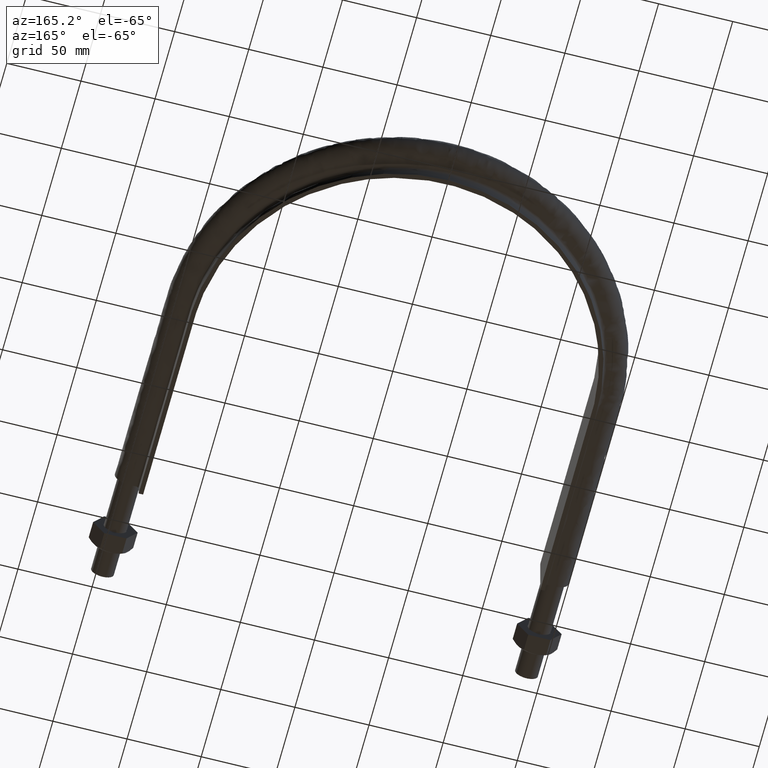
[diagram: clean part render]
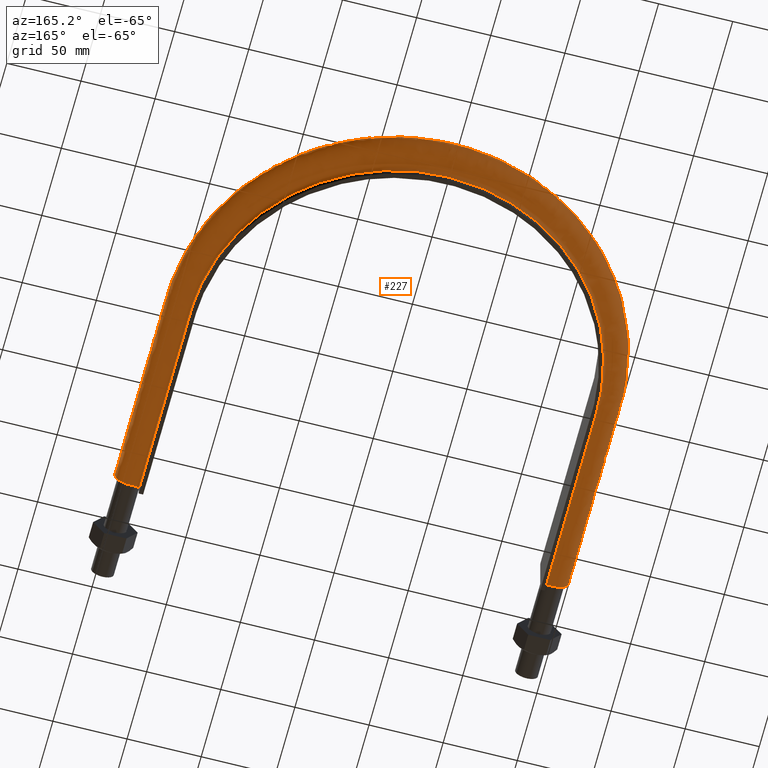
[diagram: same view with one face highlighted and labeled with its STEP entity id]
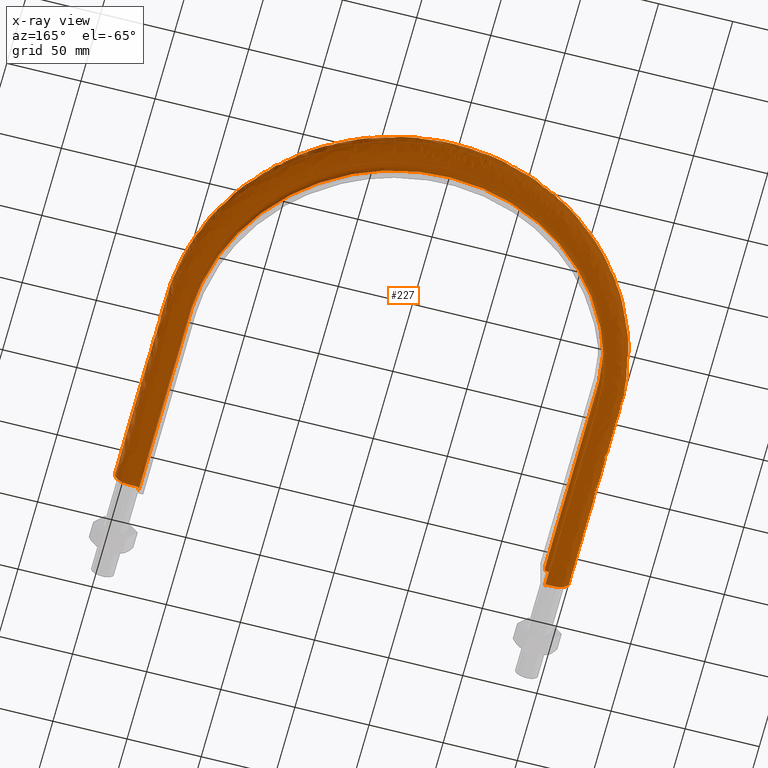
[diagram: x-ray of the same camera — body ghosted, the highlighted face saturated]
A machine part, auxiliary view. The second image highlights one B-rep face of the part: STEP entity #227.
The next image is the same camera in x-ray: the body ghosted, the highlighted face saturated — about 0% of this face is hidden behind the body in this view.
In plain terms, the highlighted face is a freeform B-spline surface patch.
Its self-contained STEP definition (entity closure, byte-faithful):
#227 = ADVANCED_FACE( '', ( #279 ), #280, .F. );
#279 = FACE_OUTER_BOUND( '', #568, .T. );
#280 = B_SPLINE_SURFACE_WITH_KNOTS( '', 3, 3, ( ( #569, #570, #571, #572, #573, #574, #575, #576, #577, #578, #579, #580, #581, #582, #583, #584, #585 ), ( #586, #587, #588, #589, #590, #591, #592, #593, #594, #595, #596, #597, #598, #599, #600, #601, #602 ), ( #603, #604, #605, #606, #607, #608, #609, #610, #611, #612, #613, #614, #615, #616, #617, #618, #619 ), ( #620, #621, #622, #623, #624, #625, #626, #627, #628, #629, #630, #631, #632, #633, #634, #635, #636 ), ( #637, #638, #639, #640, #641, #642, #643, #644, #645, #646, #647, #648, #649, #650, #651, #652, #653 ), ( #654, #655, #656, #657, #658, #659, #660, #661, #662, #663, #664, #665, #666, #667, #668, #669, #670 ), ( #671, #672, #673, #674, #675, #676, #677, #678, #679, #680, #681, #682, #683, #684, #685, #686, #687 ), ( #688, #689, #690, #691, #692, #693, #694, #695, #696, #697, #698, #699, #700, #701, #702, #703, #704 ), ( #705, #706, #707, #708, #709, #710, #711, #712, #713, #714, #715, #716, #717, #718, #719, #720, #721 ), ( #722, #723, #724, #725, #726, #727, #728, #729, #730, #731, #732, #733, #734, #735, #736, #737, #738 ), ( #739, #740, #741, #742, #743, #744, #745, #746, #747, #748, #749, #750, #751, #752, #753, #754, #755 ), ( #756, #757, #758, #759, #760, #761, #762, #763, #764, #765, #766, #767, #768, #769, #770, #771, #772 ), ( #773, #774, #775, #776, #777, #778, #779, #780, #781, #782, #783, #784, #785, #786, #787, #788, #789 ), ( #790, #791, #792, #793, #794, #795, #796, #797, #798, #799, #800, #801, #802, #803, #804, #805, #806 ), ( #807, #808, #809, #810, #811, #812, #813, #814, #815, #816, #817, #818, #819, #820, #821, #822, #823 ), ( #824, #825, #826, #827, #828, #829, #830, #831, #832, #833, #834, #835, #836, #837, #838, #839, #840 ), ( #841, #842, #843, #844, #845, #846, #847, #848, #849, #850, #851, #852, #853, #854, #855, #856, #857 ), ( #858, #859, #860, #861, #862, #863, #864, #865, #866, #867, #868, #869, #870, #871, #872, #873, #874 ), ( #875, #876, #877, #878, #879, #880, #881, #882, #883, #884, #885, #886, #887, #888, #889, #890, #891 ), ( #892, #893, #894, #895, #896, #897, #898, #899, #900, #901, #902, #903, #904, #905, #906, #907, #908 ), ( #909, #910, #911, #912, #913, #914, #915, #916, #917, #918, #919, #920, #921, #922, #923, #924, #925 ), ( #926, #927, #928, #929, #930, #931, #932, #933, #934, #935, #936, #937, #938, #939, #940, #941, #942 ), ( #943, #944, #945, #946, #947, #948, #949, #950, #951, #952, #953, #954, #955, #956, #957, #958, #959 ), ( #960, #961, #962, #963, #964, #965, #966, #967, #968, #969, #970, #971, #972, #973, #974, #975, #976 ), ( #977, #978, #979, #980, #981, #982, #983, #984, #985, #986, #987, #988, #989, #990, #991, #992, #993 ), ( #994, #995, #996, #997, #998, #999, #1000, #1001, #1002, #1003, #1004, #1005, #1006, #1007, #1008, #1009, #1010 ), ( #1011, #1012, #1013, #1014, #1015, #1016, #1017, #1018, #1019, #1020, #1021, #1022, #1023, #1024, #1025, #1026, #1027 ), ( #1028, #1029, #1030, #1031, #1032, #1033, #1034, #1035, #1036, #1037, #1038, #1039, #1040, #1041, #1042, #1043, #1044 ), ( #1045, #1046, #1047, #1048, #1049, #1050, #1051, #1052, #1053, #1054, #1055, #1056, #1057, #1058, #1059, #1060, #1061 ), ( #1062, #1063, #1064, #1065, #1066, #1067, #1068, #1069, #1070, #1071, #1072, #1073, #1074, #1075, #1076, #1077, #1078 ), ( #1079, #1080, #1081, #1082, #1083, #1084, #1085, #1086, #1087, #1088, #1089, #1090, #1091, #1092, #1093, #1094, #1095 ), ( #1096, #1097, #1098, #1099, #1100, #1101, #1102, #1103, #1104, #1105, #1106, #1107, #1108, #1109, #1110, #1111, #1112 ) ), .UNSPECIFIED., .F., .F., .F., ( 4, 3, 1, 1, 1, 3, 3, 1, 1, 1, 1, 3, 3, 1, 1, 1, 3, 4 ), ( 4, 3, 1, 1, 1, 1, 1, 1, 1, 3, 4 ), ( 0.100000000000000, 0.150000000000000, 0.200000000000000, 0.250000000000000, 0.300000000000000, 0.350000000000000, 0.400000000000000, 0.450000000000000, 0.500000000000000, 0.550000000000000, 0.600000000000000, 0.650000000000000, 0.700000000000000, 0.750000000000000, 0.800000000000000, 0.850000000000000, 0.900000000000000, 0.950000000000000 ), ( 0.000000000000000, 1.00000000000000, 2.00000000000000, 3.00000000000000, 4.00000000000000, 5.00000000000000, 6.00000000000000, 7.00000000000000, 8.00000000000000, 9.00000000000000, 10.0000000000000 ), .UNSPECIFIED. );
#568 = EDGE_LOOP( '', ( #1632, #1633, #1634, #1635 ) );
#569 = CARTESIAN_POINT( '', ( 136.950000000000, 69.5000000000000, -20.0000000000000 ) );
#570 = CARTESIAN_POINT( '', ( 136.950000000000, 113.683333333333, -20.0000000000000 ) );
#571 = CARTESIAN_POINT( '', ( 136.950000000000, 157.866666666667, -20.0000000000000 ) );
#572 = CARTESIAN_POINT( '', ( 136.950000000000, 202.050000000000, -20.0000000000000 ) );
#573 = CARTESIAN_POINT( '', ( 136.950000000000, 219.963857435017, -20.0000000000000 ) );
#574 = CARTESIAN_POINT( '', ( 129.819269813161, 255.827750890366, -20.0000000000000 ) );
#575 = CARTESIAN_POINT( '', ( 99.3593675184605, 301.408062105588, -20.0000000000001 ) );
#576 = CARTESIAN_POINT( '', ( 53.7729022139835, 331.869642788268, -20.0000000000000 ) );
#577 = CARTESIAN_POINT( '', ( 1.20013305850860E-013, 342.565178605866, -20.0000000000000 ) );
#578 = CARTESIAN_POINT( '', ( -53.7729022139834, 331.869642788267, -20.0000000000000 ) );
#579 = CARTESIAN_POINT( '', ( -99.3593675184604, 301.408062105588, -20.0000000000000 ) );
#580 = CARTESIAN_POINT( '', ( -129.819269813161, 255.827750890366, -20.0000000000000 ) );
#581 = CARTESIAN_POINT( '', ( -136.950000000000, 219.963857435017, -20.0000000000000 ) );
#582 = CARTESIAN_POINT( '', ( -136.950000000000, 202.050000000000, -20.0000000000000 ) );
#583 = CARTESIAN_POINT( '', ( -136.950000000000, 157.866666666667, -20.0000000000000 ) );
#584 = CARTESIAN_POINT( '', ( -136.950000000000, 113.683333333333, -20.0000000000000 ) );
#585 = CARTESIAN_POINT( '', ( -136.950000000000, 69.5000000000001, -20.0000000000000 ) );
#586 = CARTESIAN_POINT( '', ( 136.950000000000, 69.5000000000000, -17.3666666666667 ) );
#587 = CARTESIAN_POINT( '', ( 136.950000000000, 113.683333333333, -17.3666666666667 ) );
#588 = CARTESIAN_POINT( '', ( 136.950000000000, 157.866666666667, -17.3666666666667 ) );
#589 = CARTESIAN_POINT( '', ( 136.950000000000, 202.050000000000, -17.3666666666667 ) );
#590 = CARTESIAN_POINT( '', ( 136.950000000000, 219.963857435017, -17.3666666666667 ) );
#591 = CARTESIAN_POINT( '', ( 129.819269813161, 255.827750890366, -17.3666666666667 ) );
#592 = CARTESIAN_POINT( '', ( 99.3593675184605, 301.408062105588, -17.3666666666667 ) );
#593 = CARTESIAN_POINT( '', ( 53.7729022139835, 331.869642788268, -17.3666666666667 ) );
#594 = CARTESIAN_POINT( '', ( 1.11339688470976E-013, 342.565178605866, -17.3666666666667 ) );
#595 = CARTESIAN_POINT( '', ( -53.7729022139834, 331.869642788267, -17.3666666666667 ) );
#596 = CARTESIAN_POINT( '', ( -99.3593675184604, 301.408062105588, -17.3666666666667 ) );
#597 = CARTESIAN_POINT( '', ( -129.819269813161, 255.827750890366, -17.3666666666667 ) );
#598 = CARTESIAN_POINT( '', ( -136.950000000000, 219.963857435017, -17.3666666666667 ) );
#599 = CARTESIAN_POINT( '', ( -136.950000000000, 202.050000000000, -17.3666666666667 ) );
#600 = CARTESIAN_POINT( '', ( -136.950000000000, 157.866666666667, -17.3666666666667 ) );
#601 = CARTESIAN_POINT( '', ( -136.950000000000, 113.683333333333, -17.3666666666667 ) );
#602 = CARTESIAN_POINT( '', ( -136.950000000000, 69.5000000000001, -17.3666666666667 ) );
#603 = CARTESIAN_POINT( '', ( 136.950000000000, 69.5000000000000, -14.7333333333333 ) );
#604 = CARTESIAN_POINT( '', ( 136.950000000000, 113.683333333333, -14.7333333333333 ) );
#605 = CARTESIAN_POINT( '', ( 136.950000000000, 157.866666666667, -14.7333333333333 ) );
#606 = CARTESIAN_POINT( '', ( 136.950000000000, 202.050000000000, -14.7333333333333 ) );
#607 = CARTESIAN_POINT( '', ( 136.950000000000, 219.963857435017, -14.7333333333333 ) );
#608 = CARTESIAN_POINT( '', ( 129.819269813161, 255.827750890366, -14.7333333333333 ) );
#609 = CARTESIAN_POINT( '', ( 99.3593675184605, 301.408062105588, -14.7333333333334 ) );
#610 = CARTESIAN_POINT( '', ( 53.7729022139835, 331.869642788268, -14.7333333333333 ) );
#611 = CARTESIAN_POINT( '', ( 1.02666071091092E-013, 342.565178605866, -14.7333333333333 ) );
#612 = CARTESIAN_POINT( '', ( -53.7729022139834, 331.869642788267, -14.7333333333333 ) );
#613 = CARTESIAN_POINT( '', ( -99.3593675184604, 301.408062105588, -14.7333333333333 ) );
#614 = CARTESIAN_POINT( '', ( -129.819269813161, 255.827750890366, -14.7333333333333 ) );
#615 = CARTESIAN_POINT( '', ( -136.950000000000, 219.963857435017, -14.7333333333333 ) );
#616 = CARTESIAN_POINT( '', ( -136.950000000000, 202.050000000000, -14.7333333333333 ) );
#617 = CARTESIAN_POINT( '', ( -136.950000000000, 157.866666666667, -14.7333333333333 ) );
#618 = CARTESIAN_POINT( '', ( -136.950000000000, 113.683333333333, -14.7333333333333 ) );
#619 = CARTESIAN_POINT( '', ( -136.950000000000, 69.5000000000001, -14.7333333333333 ) );
#620 = CARTESIAN_POINT( '', ( 136.950000000000, 69.5000000000000, -12.1000000000000 ) );
#621 = CARTESIAN_POINT( '', ( 136.950000000000, 113.683333333333, -12.1000000000000 ) );
#622 = CARTESIAN_POINT( '', ( 136.950000000000, 157.866666666667, -12.1000000000000 ) );
#623 = CARTESIAN_POINT( '', ( 136.950000000000, 202.050000000000, -12.1000000000000 ) );
#624 = CARTESIAN_POINT( '', ( 136.950000000000, 219.963857435017, -12.1000000000000 ) );
#625 = CARTESIAN_POINT( '', ( 129.819269813161, 255.827750890366, -12.1000000000000 ) );
#626 = CARTESIAN_POINT( '', ( 99.3593675184605, 301.408062105588, -12.1000000000000 ) );
#627 = CARTESIAN_POINT( '', ( 53.7729022139835, 331.869642788268, -12.1000000000000 ) );
#628 = CARTESIAN_POINT( '', ( 9.22577302352316E-014, 342.565178605866, -12.1000000000000 ) );
#629 = CARTESIAN_POINT( '', ( -53.7729022139834, 331.869642788267, -12.1000000000000 ) );
#630 = CARTESIAN_POINT( '', ( -99.3593675184604, 301.408062105588, -12.1000000000000 ) );
#631 = CARTESIAN_POINT( '', ( -129.819269813161, 255.827750890366, -12.1000000000000 ) );
#632 = CARTESIAN_POINT( '', ( -136.950000000000, 219.963857435017, -12.1000000000000 ) );
#633 = CARTESIAN_POINT( '', ( -136.950000000000, 202.050000000000, -12.1000000000000 ) );
#634 = CARTESIAN_POINT( '', ( -136.950000000000, 157.866666666667, -12.1000000000000 ) );
#635 = CARTESIAN_POINT( '', ( -136.950000000000, 113.683333333333, -12.1000000000000 ) );
#636 = CARTESIAN_POINT( '', ( -136.950000000000, 69.5000000000001, -12.1000000000000 ) );
#637 = CARTESIAN_POINT( '', ( 136.950000000000, 69.5000000000000, -11.8382358417233 ) );
#638 = CARTESIAN_POINT( '', ( 136.950000000000, 113.683333333333, -11.8382358417233 ) );
#639 = CARTESIAN_POINT( '', ( 136.950000000000, 157.866666666667, -11.8382358417233 ) );
#640 = CARTESIAN_POINT( '', ( 136.950000000000, 202.050000000000, -11.8382358417233 ) );
#641 = CARTESIAN_POINT( '', ( 136.950000000000, 219.963857435017, -11.8382358417233 ) );
#642 = CARTESIAN_POINT( '', ( 129.819269813161, 255.827750890366, -11.8382358417233 ) );
#643 = CARTESIAN_POINT( '', ( 99.3593675184605, 301.408062105588, -11.8382358417233 ) );
#644 = CARTESIAN_POINT( '', ( 53.7729022139835, 331.869642788268, -11.8382358417233 ) );
#645 = CARTESIAN_POINT( '', ( 9.05230067592547E-014, 342.565178605866, -11.8382358417233 ) );
#646 = CARTESIAN_POINT( '', ( -53.7729022139834, 331.869642788267, -11.8382358417233 ) );
#647 = CARTESIAN_POINT( '', ( -99.3593675184604, 301.408062105588, -11.8382358417233 ) );
#648 = CARTESIAN_POINT( '', ( -129.819269813161, 255.827750890366, -11.8382358417233 ) );
#649 = CARTESIAN_POINT( '', ( -136.950000000000, 219.963857435017, -11.8382358417233 ) );
#650 = CARTESIAN_POINT( '', ( -136.950000000000, 202.050000000000, -11.8382358417233 ) );
#651 = CARTESIAN_POINT( '', ( -136.950000000000, 157.866666666667, -11.8382358417233 ) );
#652 = CARTESIAN_POINT( '', ( -136.950000000000, 113.683333333333, -11.8382358417233 ) );
#653 = CARTESIAN_POINT( '', ( -136.950000000000, 69.5000000000001, -11.8382358417233 ) );
#654 = CARTESIAN_POINT( '', ( 137.054136256836, 69.5000000000000, -11.3147075251700 ) );
#655 = CARTESIAN_POINT( '', ( 137.054136256836, 113.683333333333, -11.3147075251700 ) );
#656 = CARTESIAN_POINT( '', ( 137.054136256836, 157.866666666667, -11.3147075251700 ) );
#657 = CARTESIAN_POINT( '', ( 137.054136256836, 202.050000000000, -11.3147075251700 ) );
#658 = CARTESIAN_POINT( '', ( 137.054136256836, 219.977666761268, -11.3147075251700 ) );
#659 = CARTESIAN_POINT( '', ( 129.917983890003, 255.868556141443, -11.3147075251700 ) );
#660 = CARTESIAN_POINT( '', ( 99.4349200019578, 301.483637058641, -11.3147075251700 ) );
#661 = CARTESIAN_POINT( '', ( 53.8137909234086, 331.968350445237, -11.3147075251700 ) );
#662 = CARTESIAN_POINT( '', ( 9.92097091262117E-014, 342.672029162636, -11.3147075251700 ) );
#663 = CARTESIAN_POINT( '', ( -53.8137909234086, 331.968350445236, -11.3147075251700 ) );
#664 = CARTESIAN_POINT( '', ( -99.4349200019577, 301.483637058641, -11.3147075251700 ) );
#665 = CARTESIAN_POINT( '', ( -129.917983890003, 255.868556141442, -11.3147075251700 ) );
#666 = CARTESIAN_POINT( '', ( -137.054136256836, 219.977666761268, -11.3147075251700 ) );
#667 = CARTESIAN_POINT( '', ( -137.054136256836, 202.050000000000, -11.3147075251700 ) );
#668 = CARTESIAN_POINT( '', ( -137.054136256836, 157.866666666667, -11.3147075251700 ) );
#669 = CARTESIAN_POINT( '', ( -137.054136256836, 113.683333333333, -11.3147075251700 ) );
#670 = CARTESIAN_POINT( '', ( -137.054136256836, 69.5000000000001, -11.3147075251700 ) );
#671 = CARTESIAN_POINT( '', ( 137.498968710939, 69.5000000000000, -10.6489687109389 ) );
#672 = CARTESIAN_POINT( '', ( 137.498968710939, 113.683333333333, -10.6489687109389 ) );
#673 = CARTESIAN_POINT( '', ( 137.498968710939, 157.866666666667, -10.6489687109389 ) );
#674 = CARTESIAN_POINT( '', ( 137.498968710939, 202.050000000000, -10.6489687109389 ) );
#675 = CARTESIAN_POINT( '', ( 137.498968710939, 220.036655212290, -10.6489687109389 ) );
#676 = CARTESIAN_POINT( '', ( 130.339654750761, 256.042861426923, -10.6489687109389 ) );
#677 = CARTESIAN_POINT( '', ( 99.7576529066044, 301.806465945108, -10.6489687109389 ) );
#678 = CARTESIAN_POINT( '', ( 53.9884527127922, 332.389993882618, -10.6489687109389 ) );
#679 = CARTESIAN_POINT( '', ( 9.92656034620406E-014, 343.128456125100, -10.6489687109389 ) );
#680 = CARTESIAN_POINT( '', ( -53.9884527127922, 332.389993882617, -10.6489687109389 ) );
#681 = CARTESIAN_POINT( '', ( -99.7576529066043, 301.806465945108, -10.6489687109389 ) );
#682 = CARTESIAN_POINT( '', ( -130.339654750761, 256.042861426923, -10.6489687109389 ) );
#683 = CARTESIAN_POINT( '', ( -137.498968710939, 220.036655212290, -10.6489687109389 ) );
#684 = CARTESIAN_POINT( '', ( -137.498968710939, 202.050000000000, -10.6489687109389 ) );
#685 = CARTESIAN_POINT( '', ( -137.498968710939, 157.866666666667, -10.6489687109389 ) );
#686 = CARTESIAN_POINT( '', ( -137.498968710939, 113.683333333333, -10.6489687109389 ) );
#687 = CARTESIAN_POINT( '', ( -137.498968710939, 69.5000000000001, -10.6489687109389 ) );
#688 = CARTESIAN_POINT( '', ( 138.164707525170, 69.5000000000000, -10.2041362568359 ) );
#689 = CARTESIAN_POINT( '', ( 138.164707525170, 113.683333333333, -10.2041362568359 ) );
#690 = CARTESIAN_POINT( '', ( 138.164707525170, 157.866666666667, -10.2041362568359 ) );
#691 = CARTESIAN_POINT( '', ( 138.164707525170, 202.050000000000, -10.2041362568359 ) );
#692 = CARTESIAN_POINT( '', ( 138.164707525170, 220.124937668020, -10.2041362568359 ) );
#693 = CARTESIAN_POINT( '', ( 130.970729790920, 256.303727721636, -10.2041362568359 ) );
#694 = CARTESIAN_POINT( '', ( 100.240656831500, 302.289613516949, -10.2041362568359 ) );
#695 = CARTESIAN_POINT( '', ( 54.2498525533012, 333.021027880792, -10.2041362568359 ) );
#696 = CARTESIAN_POINT( '', ( 9.41450848192121E-014, 343.811547347359, -10.2041362568359 ) );
#697 = CARTESIAN_POINT( '', ( -54.2498525533011, 333.021027880792, -10.2041362568359 ) );
#698 = CARTESIAN_POINT( '', ( -100.240656831500, 302.289613516949, -10.2041362568359 ) );
#699 = CARTESIAN_POINT( '', ( -130.970729790920, 256.303727721636, -10.2041362568359 ) );
#700 = CARTESIAN_POINT( '', ( -138.164707525170, 220.124937668020, -10.2041362568359 ) );
#701 = CARTESIAN_POINT( '', ( -138.164707525170, 202.050000000000, -10.2041362568359 ) );
#702 = CARTESIAN_POINT( '', ( -138.164707525170, 157.866666666667, -10.2041362568359 ) );
#703 = CARTESIAN_POINT( '', ( -138.164707525170, 113.683333333333, -10.2041362568359 ) );
#704 = CARTESIAN_POINT( '', ( -138.164707525170, 69.5000000000001, -10.2041362568359 ) );
#705 = CARTESIAN_POINT( '', ( 138.688235841723, 69.5000000000000, -10.1000000000000 ) );
#706 = CARTESIAN_POINT( '', ( 138.688235841723, 113.683333333333, -10.1000000000000 ) );
#707 = CARTESIAN_POINT( '', ( 138.688235841723, 157.866666666667, -10.1000000000000 ) );
#708 = CARTESIAN_POINT( '', ( 138.688235841723, 202.050000000000, -10.1000000000000 ) );
#709 = CARTESIAN_POINT( '', ( 138.688235841723, 220.194361839244, -10.1000000000000 ) );
#710 = CARTESIAN_POINT( '', ( 131.466998967857, 256.508869571859, -10.1000000000000 ) );
#711 = CARTESIAN_POINT( '', ( 100.620484815515, 302.669554463046, -10.1000000000000 ) );
#712 = CARTESIAN_POINT( '', ( 54.4554139769760, 333.517264782848, -10.1000000000000 ) );
#713 = CARTESIAN_POINT( '', ( 9.59455909674545E-014, 344.348721371161, -10.1000000000000 ) );
#714 = CARTESIAN_POINT( '', ( -54.4554139769760, 333.517264782848, -10.1000000000000 ) );
#715 = CARTESIAN_POINT( '', ( -100.620484815514, 302.669554463046, -10.1000000000000 ) );
#716 = CARTESIAN_POINT( '', ( -131.466998967857, 256.508869571859, -10.1000000000000 ) );
#717 = CARTESIAN_POINT( '', ( -138.688235841723, 220.194361839244, -10.1000000000000 ) );
#718 = CARTESIAN_POINT( '', ( -138.688235841723, 202.050000000000, -10.1000000000000 ) );
#719 = CARTESIAN_POINT( '', ( -138.688235841723, 157.866666666667, -10.1000000000000 ) );
#720 = CARTESIAN_POINT( '', ( -138.688235841723, 113.683333333333, -10.1000000000000 ) );
#721 = CARTESIAN_POINT( '', ( -138.688235841723, 69.5000000000001, -10.1000000000000 ) );
#722 = CARTESIAN_POINT( '', ( 138.950000000000, 69.5000000000000, -10.1000000000000 ) );
#723 = CARTESIAN_POINT( '', ( 138.950000000000, 113.683333333333, -10.1000000000000 ) );
#724 = CARTESIAN_POINT( '', ( 138.950000000000, 157.866666666667, -10.1000000000000 ) );
#725 = CARTESIAN_POINT( '', ( 138.950000000000, 202.050000000000, -10.1000000000000 ) );
#726 = CARTESIAN_POINT( '', ( 138.950000000000, 220.229073924856, -10.1000000000000 ) );
#727 = CARTESIAN_POINT( '', ( 131.715133556325, 256.611440496970, -10.1000000000000 ) );
#728 = CARTESIAN_POINT( '', ( 100.810398807522, 302.859524936095, -10.1000000000000 ) );
#729 = CARTESIAN_POINT( '', ( 54.5581946888135, 333.765383233876, -10.1000000000000 ) );
#730 = CARTESIAN_POINT( '', ( 9.07743118756569E-014, 344.617308383062, -10.1000000000000 ) );
#731 = CARTESIAN_POINT( '', ( -54.5581946888134, 333.765383233876, -10.1000000000000 ) );
#732 = CARTESIAN_POINT( '', ( -100.810398807522, 302.859524936095, -10.1000000000000 ) );
#733 = CARTESIAN_POINT( '', ( -131.715133556325, 256.611440496970, -10.1000000000000 ) );
#734 = CARTESIAN_POINT( '', ( -138.950000000000, 220.229073924856, -10.1000000000000 ) );
#735 = CARTESIAN_POINT( '', ( -138.950000000000, 202.050000000000, -10.1000000000000 ) );
#736 = CARTESIAN_POINT( '', ( -138.950000000000, 157.866666666667, -10.1000000000000 ) );
#737 = CARTESIAN_POINT( '', ( -138.950000000000, 113.683333333333, -10.1000000000000 ) );
#738 = CARTESIAN_POINT( '', ( -138.950000000000, 69.5000000000001, -10.1000000000000 ) );
#739 = CARTESIAN_POINT( '', ( 140.300000000000, 69.5000000000000, -10.1000000000000 ) );
#740 = CARTESIAN_POINT( '', ( 140.300000000000, 113.683333333333, -10.1000000000000 ) );
#741 = CARTESIAN_POINT( '', ( 140.300000000000, 157.866666666667, -10.1000000000000 ) );
#742 = CARTESIAN_POINT( '', ( 140.300000000000, 202.050000000000, -10.1000000000000 ) );
#743 = CARTESIAN_POINT( '', ( 140.300000000000, 220.408095055498, -10.1000000000000 ) );
#744 = CARTESIAN_POINT( '', ( 132.994841582961, 257.140430981428, -10.1000000000000 ) );
#745 = CARTESIAN_POINT( '', ( 101.789844927638, 303.839262346687, -10.1000000000000 ) );
#746 = CARTESIAN_POINT( '', ( 55.0882671093237, 335.045008034661, -10.1000000000000 ) );
#747 = CARTESIAN_POINT( '', ( 1.18699518444857E-013, 346.002495982669, -10.1000000000000 ) );
#748 = CARTESIAN_POINT( '', ( -55.0882671093237, 335.045008034661, -10.1000000000000 ) );
#749 = CARTESIAN_POINT( '', ( -101.789844927638, 303.839262346686, -10.1000000000000 ) );
#750 = CARTESIAN_POINT( '', ( -132.994841582961, 257.140430981428, -10.1000000000000 ) );
#751 = CARTESIAN_POINT( '', ( -140.300000000000, 220.408095055498, -10.1000000000000 ) );
#752 = CARTESIAN_POINT( '', ( -140.300000000000, 202.050000000000, -10.1000000000000 ) );
#753 = CARTESIAN_POINT( '', ( -140.300000000000, 157.866666666667, -10.1000000000000 ) );
#754 = CARTESIAN_POINT( '', ( -140.300000000000, 113.683333333333, -10.1000000000000 ) );
#755 = CARTESIAN_POINT( '', ( -140.300000000000, 69.5000000000001, -10.1000000000000 ) );
#756 = CARTESIAN_POINT( '', ( 141.650000000000, 69.5000000000000, -10.1000000000000 ) );
#757 = CARTESIAN_POINT( '', ( 141.650000000000, 113.683333333333, -10.1000000000000 ) );
#758 = CARTESIAN_POINT( '', ( 141.650000000000, 157.866666666667, -10.1000000000000 ) );
#759 = CARTESIAN_POINT( '', ( 141.650000000000, 202.050000000000, -10.1000000000000 ) );
#760 = CARTESIAN_POINT( '', ( 141.650000000000, 220.587116186140, -10.1000000000000 ) );
#761 = CARTESIAN_POINT( '', ( 134.274549609597, 257.669421465886, -10.1000000000000 ) );
#762 = CARTESIAN_POINT( '', ( 102.769291047754, 304.818999757278, -10.1000000000000 ) );
#763 = CARTESIAN_POINT( '', ( 55.6183395298340, 336.324632835447, -10.1000000000000 ) );
#764 = CARTESIAN_POINT( '', ( 1.15399702446475E-013, 347.387683582277, -10.1000000000000 ) );
#765 = CARTESIAN_POINT( '', ( -55.6183395298339, 336.324632835447, -10.1000000000000 ) );
#766 = CARTESIAN_POINT( '', ( -102.769291047754, 304.818999757278, -10.1000000000000 ) );
#767 = CARTESIAN_POINT( '', ( -134.274549609597, 257.669421465886, -10.1000000000000 ) );
#768 = CARTESIAN_POINT( '', ( -141.650000000000, 220.587116186140, -10.1000000000000 ) );
#769 = CARTESIAN_POINT( '', ( -141.650000000000, 202.050000000000, -10.1000000000000 ) );
#770 = CARTESIAN_POINT( '', ( -141.650000000000, 157.866666666667, -10.1000000000000 ) );
#771 = CARTESIAN_POINT( '', ( -141.650000000000, 113.683333333333, -10.1000000000000 ) );
#772 = CARTESIAN_POINT( '', ( -141.650000000000, 69.5000000000001, -10.1000000000000 ) );
#773 = CARTESIAN_POINT( '', ( 143.000000000000, 69.5000000000000, -10.1000000000000 ) );
#774 = CARTESIAN_POINT( '', ( 143.000000000000, 113.683333333333, -10.1000000000000 ) );
#775 = CARTESIAN_POINT( '', ( 143.000000000000, 157.866666666667, -10.1000000000000 ) );
#776 = CARTESIAN_POINT( '', ( 143.000000000000, 202.050000000000, -10.1000000000000 ) );
#777 = CARTESIAN_POINT( '', ( 143.000000000000, 220.766137316781, -10.1000000000000 ) );
#778 = CARTESIAN_POINT( '', ( 135.554257636233, 258.198411950344, -10.1000000000000 ) );
#779 = CARTESIAN_POINT( '', ( 103.748737167870, 305.798737167870, -10.1000000000000 ) );
#780 = CARTESIAN_POINT( '', ( 56.1484119503442, 337.604257636233, -10.1000000000000 ) );
#781 = CARTESIAN_POINT( '', ( 1.12099886448093E-013, 348.772871181884, -10.1000000000000 ) );
#782 = CARTESIAN_POINT( '', ( -56.1484119503442, 337.604257636232, -10.1000000000000 ) );
#783 = CARTESIAN_POINT( '', ( -103.748737167870, 305.798737167870, -10.1000000000000 ) );
#784 = CARTESIAN_POINT( '', ( -135.554257636232, 258.198411950344, -10.1000000000000 ) );
#785 = CARTESIAN_POINT( '', ( -143.000000000000, 220.766137316781, -10.1000000000000 ) );
#786 = CARTESIAN_POINT( '', ( -143.000000000000, 202.050000000000, -10.1000000000000 ) );
#787 = CARTESIAN_POINT( '', ( -143.000000000000, 157.866666666667, -10.1000000000000 ) );
#788 = CARTESIAN_POINT( '', ( -143.000000000000, 113.683333333333, -10.1000000000000 ) );
#789 = CARTESIAN_POINT( '', ( -143.000000000000, 69.5000000000001, -10.1000000000000 ) );
#790 = CARTESIAN_POINT( '', ( 145.113419413283, 69.5000000000000, -10.1000000000000 ) );
#791 = CARTESIAN_POINT( '', ( 145.113419413283, 113.683333333333, -10.1000000000000 ) );
#792 = CARTESIAN_POINT( '', ( 145.113419413283, 157.866666666667, -10.1000000000000 ) );
#793 = CARTESIAN_POINT( '', ( 145.113419413283, 202.050000000000, -10.1000000000000 ) );
#794 = CARTESIAN_POINT( '', ( 145.113419413283, 221.046394155956, -10.1000000000000 ) );
#795 = CARTESIAN_POINT( '', ( 137.557635256104, 259.026544364637, -10.1000000000000 ) );
#796 = CARTESIAN_POINT( '', ( 105.282056015662, 307.332512029696, -10.1000000000000 ) );
#797 = CARTESIAN_POINT( '', ( 56.9782381310496, 339.607504966380, -10.1000000000000 ) );
#798 = CARTESIAN_POINT( '', ( 8.98140378162255E-014, 350.941376636735, -10.1000000000000 ) );
#799 = CARTESIAN_POINT( '', ( -56.9782381310496, 339.607504966380, -10.1000000000000 ) );
#800 = CARTESIAN_POINT( '', ( -105.282056015662, 307.332512029696, -10.1000000000000 ) );
#801 = CARTESIAN_POINT( '', ( -137.557635256104, 259.026544364637, -10.1000000000000 ) );
#802 = CARTESIAN_POINT( '', ( -145.113419413283, 221.046394155956, -10.1000000000000 ) );
#803 = CARTESIAN_POINT( '', ( -145.113419413283, 202.050000000000, -10.1000000000000 ) );
#804 = CARTESIAN_POINT( '', ( -145.113419413283, 157.866666666667, -10.1000000000000 ) );
#805 = CARTESIAN_POINT( '', ( -145.113419413283, 113.683333333333, -10.1000000000000 ) );
#806 = CARTESIAN_POINT( '', ( -145.113419413283, 69.5000000000001, -10.1000000000000 ) );
#807 = CARTESIAN_POINT( '', ( 149.340258239849, 69.5000000000000, -8.72661681244670 ) );
#808 = CARTESIAN_POINT( '', ( 149.340258239849, 113.683333333333, -8.72661681244670 ) );
#809 = CARTESIAN_POINT( '', ( 149.340258239849, 157.866666666667, -8.72661681244670 ) );
#810 = CARTESIAN_POINT( '', ( 149.340258239849, 202.050000000000, -8.72661681244670 ) );
#811 = CARTESIAN_POINT( '', ( 149.340258239849, 221.606907834306, -8.72661681244670 ) );
#812 = CARTESIAN_POINT( '', ( 141.564390495846, 260.682809193223, -8.72661681244670 ) );
#813 = CARTESIAN_POINT( '', ( 108.348693711245, 310.400061753347, -8.72661681244671 ) );
#814 = CARTESIAN_POINT( '', ( 58.6378904924604, 343.613999626674, -8.72661681244669 ) );
#815 = CARTESIAN_POINT( '', ( 8.86104274519105E-014, 355.278387546437, -8.72661681244670 ) );
#816 = CARTESIAN_POINT( '', ( -58.6378904924603, 343.613999626674, -8.72661681244671 ) );
#817 = CARTESIAN_POINT( '', ( -108.348693711245, 310.400061753347, -8.72661681244670 ) );
#818 = CARTESIAN_POINT( '', ( -141.564390495846, 260.682809193223, -8.72661681244670 ) );
#819 = CARTESIAN_POINT( '', ( -149.340258239849, 221.606907834306, -8.72661681244670 ) );
#820 = CARTESIAN_POINT( '', ( -149.340258239849, 202.050000000000, -8.72661681244670 ) );
#821 = CARTESIAN_POINT( '', ( -149.340258239849, 157.866666666667, -8.72661681244670 ) );
#822 = CARTESIAN_POINT( '', ( -149.340258239849, 113.683333333333, -8.72661681244670 ) );
#823 = CARTESIAN_POINT( '', ( -149.340258239849, 69.5000000000001, -8.72661681244670 ) );
#824 = CARTESIAN_POINT( '', ( 153.258753329527, 69.5000000000000, -3.33327101555837 ) );
#825 = CARTESIAN_POINT( '', ( 153.258753329527, 113.683333333333, -3.33327101555837 ) );
#826 = CARTESIAN_POINT( '', ( 153.258753329527, 157.866666666667, -3.33327101555837 ) );
#827 = CARTESIAN_POINT( '', ( 153.258753329527, 202.050000000000, -3.33327101555837 ) );
#828 = CARTESIAN_POINT( '', ( 153.258753329528, 222.126532590875, -3.33327101555837 ) );
#829 = CARTESIAN_POINT( '', ( 145.278856879990, 262.218251130879, -3.33327101555837 ) );
#830 = CARTESIAN_POINT( '', ( 111.191623201823, 313.243836740442, -3.33327101555838 ) );
#831 = CARTESIAN_POINT( '', ( 60.1764728457517, 347.328224440384, -3.33327101555837 ) );
#832 = CARTESIAN_POINT( '', ( 8.56333494322735E-014, 359.299017774099, -3.33327101555837 ) );
#833 = CARTESIAN_POINT( '', ( -60.1764728457517, 347.328224440384, -3.33327101555838 ) );
#834 = CARTESIAN_POINT( '', ( -111.191623201822, 313.243836740442, -3.33327101555837 ) );
#835 = CARTESIAN_POINT( '', ( -145.278856879990, 262.218251130878, -3.33327101555837 ) );
#836 = CARTESIAN_POINT( '', ( -153.258753329527, 222.126532590875, -3.33327101555837 ) );
#837 = CARTESIAN_POINT( '', ( -153.258753329527, 202.050000000000, -3.33327101555837 ) );
#838 = CARTESIAN_POINT( '', ( -153.258753329527, 157.866666666667, -3.33327101555837 ) );
#839 = CARTESIAN_POINT( '', ( -153.258753329527, 113.683333333333, -3.33327101555837 ) );
#840 = CARTESIAN_POINT( '', ( -153.258753329527, 69.5000000000001, -3.33327101555837 ) );
#841 = CARTESIAN_POINT( '', ( 153.258753329527, 69.5000000000000, 3.33327101555837 ) );
#842 = CARTESIAN_POINT( '', ( 153.258753329527, 113.683333333333, 3.33327101555837 ) );
#843 = CARTESIAN_POINT( '', ( 153.258753329527, 157.866666666667, 3.33327101555837 ) );
#844 = CARTESIAN_POINT( '', ( 153.258753329527, 202.050000000000, 3.33327101555837 ) );
#845 = CARTESIAN_POINT( '', ( 153.258753329528, 222.126532590875, 3.33327101555837 ) );
#846 = CARTESIAN_POINT( '', ( 145.278856879990, 262.218251130879, 3.33327101555837 ) );
#847 = CARTESIAN_POINT( '', ( 111.191623201823, 313.243836740442, 3.33327101555838 ) );
#848 = CARTESIAN_POINT( '', ( 60.1764728457517, 347.328224440384, 3.33327101555837 ) );
#849 = CARTESIAN_POINT( '', ( 8.56333494322735E-014, 359.299017774099, 3.33327101555837 ) );
#850 = CARTESIAN_POINT( '', ( -60.1764728457517, 347.328224440384, 3.33327101555838 ) );
#851 = CARTESIAN_POINT( '', ( -111.191623201822, 313.243836740442, 3.33327101555837 ) );
#852 = CARTESIAN_POINT( '', ( -145.278856879990, 262.218251130878, 3.33327101555837 ) );
#853 = CARTESIAN_POINT( '', ( -153.258753329527, 222.126532590875, 3.33327101555837 ) );
#854 = CARTESIAN_POINT( '', ( -153.258753329527, 202.050000000000, 3.33327101555837 ) );
#855 = CARTESIAN_POINT( '', ( -153.258753329527, 157.866666666667, 3.33327101555837 ) );
#856 = CARTESIAN_POINT( '', ( -153.258753329527, 113.683333333333, 3.33327101555837 ) );
#857 = CARTESIAN_POINT( '', ( -153.258753329527, 69.5000000000001, 3.33327101555837 ) );
#858 = CARTESIAN_POINT( '', ( 149.340258239849, 69.5000000000000, 8.72661681244669 ) );
#859 = CARTESIAN_POINT( '', ( 149.340258239849, 113.683333333333, 8.72661681244669 ) );
#860 = CARTESIAN_POINT( '', ( 149.340258239849, 157.866666666667, 8.72661681244669 ) );
#861 = CARTESIAN_POINT( '', ( 149.340258239849, 202.050000000000, 8.72661681244669 ) );
#862 = CARTESIAN_POINT( '', ( 149.340258239849, 221.606907834306, 8.72661681244669 ) );
#863 = CARTESIAN_POINT( '', ( 141.564390495846, 260.682809193223, 8.72661681244670 ) );
#864 = CARTESIAN_POINT( '', ( 108.348693711245, 310.400061753347, 8.72661681244671 ) );
#865 = CARTESIAN_POINT( '', ( 58.6378904924604, 343.613999626674, 8.72661681244669 ) );
#866 = CARTESIAN_POINT( '', ( 8.86104274519105E-014, 355.278387546437, 8.72661681244669 ) );
#867 = CARTESIAN_POINT( '', ( -58.6378904924603, 343.613999626674, 8.72661681244670 ) );
#868 = CARTESIAN_POINT( '', ( -108.348693711245, 310.400061753347, 8.72661681244669 ) );
#869 = CARTESIAN_POINT( '', ( -141.564390495846, 260.682809193223, 8.72661681244669 ) );
#870 = CARTESIAN_POINT( '', ( -149.340258239849, 221.606907834306, 8.72661681244669 ) );
#871 = CARTESIAN_POINT( '', ( -149.340258239849, 202.050000000000, 8.72661681244669 ) );
#872 = CARTESIAN_POINT( '', ( -149.340258239849, 157.866666666667, 8.72661681244669 ) );
#873 = CARTESIAN_POINT( '', ( -149.340258239849, 113.683333333333, 8.72661681244669 ) );
#874 = CARTESIAN_POINT( '', ( -149.340258239849, 69.5000000000001, 8.72661681244669 ) );
#875 = CARTESIAN_POINT( '', ( 145.113419413283, 69.5000000000000, 10.1000000000000 ) );
#876 = CARTESIAN_POINT( '', ( 145.113419413283, 113.683333333333, 10.1000000000000 ) );
#877 = CARTESIAN_POINT( '', ( 145.113419413283, 157.866666666667, 10.1000000000000 ) );
#878 = CARTESIAN_POINT( '', ( 145.113419413283, 202.050000000000, 10.1000000000000 ) );
#879 = CARTESIAN_POINT( '', ( 145.113419413283, 221.046394155956, 10.1000000000000 ) );
#880 = CARTESIAN_POINT( '', ( 137.557635256104, 259.026544364637, 10.1000000000000 ) );
#881 = CARTESIAN_POINT( '', ( 105.282056015662, 307.332512029696, 10.1000000000000 ) );
#882 = CARTESIAN_POINT( '', ( 56.9782381310496, 339.607504966380, 10.1000000000000 ) );
#883 = CARTESIAN_POINT( '', ( 8.98140378162255E-014, 350.941376636735, 10.1000000000000 ) );
#884 = CARTESIAN_POINT( '', ( -56.9782381310496, 339.607504966380, 10.1000000000000 ) );
#885 = CARTESIAN_POINT( '', ( -105.282056015662, 307.332512029696, 10.1000000000000 ) );
#886 = CARTESIAN_POINT( '', ( -137.557635256104, 259.026544364637, 10.1000000000000 ) );
#887 = CARTESIAN_POINT( '', ( -145.113419413283, 221.046394155956, 10.1000000000000 ) );
#888 = CARTESIAN_POINT( '', ( -145.113419413283, 202.050000000000, 10.1000000000000 ) );
#889 = CARTESIAN_POINT( '', ( -145.113419413283, 157.866666666667, 10.1000000000000 ) );
#890 = CARTESIAN_POINT( '', ( -145.113419413283, 113.683333333333, 10.1000000000000 ) );
#891 = CARTESIAN_POINT( '', ( -145.113419413283, 69.5000000000001, 10.1000000000000 ) );
#892 = CARTESIAN_POINT( '', ( 143.000000000000, 69.5000000000000, 10.1000000000000 ) );
#893 = CARTESIAN_POINT( '', ( 143.000000000000, 113.683333333333, 10.1000000000000 ) );
#894 = CARTESIAN_POINT( '', ( 143.000000000000, 157.866666666667, 10.1000000000000 ) );
#895 = CARTESIAN_POINT( '', ( 143.000000000000, 202.050000000000, 10.1000000000000 ) );
#896 = CARTESIAN_POINT( '', ( 143.000000000000, 220.766137316781, 10.1000000000000 ) );
#897 = CARTESIAN_POINT( '', ( 135.554257636233, 258.198411950344, 10.1000000000000 ) );
#898 = CARTESIAN_POINT( '', ( 103.748737167870, 305.798737167870, 10.1000000000000 ) );
#899 = CARTESIAN_POINT( '', ( 56.1484119503442, 337.604257636233, 10.1000000000000 ) );
#900 = CARTESIAN_POINT( '', ( 8.95484812603946E-014, 348.772871181884, 10.1000000000000 ) );
#901 = CARTESIAN_POINT( '', ( -56.1484119503442, 337.604257636232, 10.1000000000000 ) );
#902 = CARTESIAN_POINT( '', ( -103.748737167870, 305.798737167870, 10.1000000000000 ) );
#903 = CARTESIAN_POINT( '', ( -135.554257636232, 258.198411950344, 10.1000000000000 ) );
#904 = CARTESIAN_POINT( '', ( -143.000000000000, 220.766137316781, 10.1000000000000 ) );
#905 = CARTESIAN_POINT( '', ( -143.000000000000, 202.050000000000, 10.1000000000000 ) );
#906 = CARTESIAN_POINT( '', ( -143.000000000000, 157.866666666667, 10.1000000000000 ) );
#907 = CARTESIAN_POINT( '', ( -143.000000000000, 113.683333333333, 10.1000000000000 ) );
#908 = CARTESIAN_POINT( '', ( -143.000000000000, 69.5000000000001, 10.1000000000000 ) );
#909 = CARTESIAN_POINT( '', ( 141.650000000000, 69.5000000000000, 10.1000000000000 ) );
#910 = CARTESIAN_POINT( '', ( 141.650000000000, 113.683333333333, 10.1000000000000 ) );
#911 = CARTESIAN_POINT( '', ( 141.650000000000, 157.866666666667, 10.1000000000000 ) );
#912 = CARTESIAN_POINT( '', ( 141.650000000000, 202.050000000000, 10.1000000000000 ) );
#913 = CARTESIAN_POINT( '', ( 141.650000000000, 220.587116186140, 10.1000000000000 ) );
#914 = CARTESIAN_POINT( '', ( 134.274549609597, 257.669421465886, 10.1000000000000 ) );
#915 = CARTESIAN_POINT( '', ( 102.769291047754, 304.818999757278, 10.1000000000000 ) );
#916 = CARTESIAN_POINT( '', ( 55.6183395298340, 336.324632835447, 10.1000000000000 ) );
#917 = CARTESIAN_POINT( '', ( 1.03256638114638E-013, 347.387683582277, 10.1000000000000 ) );
#918 = CARTESIAN_POINT( '', ( -55.6183395298339, 336.324632835447, 10.1000000000000 ) );
#919 = CARTESIAN_POINT( '', ( -102.769291047754, 304.818999757278, 10.1000000000000 ) );
#920 = CARTESIAN_POINT( '', ( -134.274549609597, 257.669421465886, 10.1000000000000 ) );
#921 = CARTESIAN_POINT( '', ( -141.650000000000, 220.587116186140, 10.1000000000000 ) );
#922 = CARTESIAN_POINT( '', ( -141.650000000000, 202.050000000000, 10.1000000000000 ) );
#923 = CARTESIAN_POINT( '', ( -141.650000000000, 157.866666666667, 10.1000000000000 ) );
#924 = CARTESIAN_POINT( '', ( -141.650000000000, 113.683333333333, 10.1000000000000 ) );
#925 = CARTESIAN_POINT( '', ( -141.650000000000, 69.5000000000001, 10.1000000000000 ) );
#926 = CARTESIAN_POINT( '', ( 140.300000000000, 69.5000000000000, 10.1000000000000 ) );
#927 = CARTESIAN_POINT( '', ( 140.300000000000, 113.683333333333, 10.1000000000000 ) );
#928 = CARTESIAN_POINT( '', ( 140.300000000000, 157.866666666667, 10.1000000000000 ) );
#929 = CARTESIAN_POINT( '', ( 140.300000000000, 202.050000000000, 10.1000000000000 ) );
#930 = CARTESIAN_POINT( '', ( 140.300000000000, 220.408095055498, 10.1000000000000 ) );
#931 = CARTESIAN_POINT( '', ( 132.994841582961, 257.140430981428, 10.1000000000000 ) );
#932 = CARTESIAN_POINT( '', ( 101.789844927638, 303.839262346687, 10.1000000000000 ) );
#933 = CARTESIAN_POINT( '', ( 55.0882671093237, 335.045008034661, 10.1000000000000 ) );
#934 = CARTESIAN_POINT( '', ( 9.96175602091125E-014, 346.002495982669, 10.1000000000000 ) );
#935 = CARTESIAN_POINT( '', ( -55.0882671093237, 335.045008034661, 10.1000000000000 ) );
#936 = CARTESIAN_POINT( '', ( -101.789844927638, 303.839262346686, 10.1000000000000 ) );
#937 = CARTESIAN_POINT( '', ( -132.994841582961, 257.140430981428, 10.1000000000000 ) );
#938 = CARTESIAN_POINT( '', ( -140.300000000000, 220.408095055498, 10.1000000000000 ) );
#939 = CARTESIAN_POINT( '', ( -140.300000000000, 202.050000000000, 10.1000000000000 ) );
#940 = CARTESIAN_POINT( '', ( -140.300000000000, 157.866666666667, 10.1000000000000 ) );
#941 = CARTESIAN_POINT( '', ( -140.300000000000, 113.683333333333, 10.1000000000000 ) );
#942 = CARTESIAN_POINT( '', ( -140.300000000000, 69.5000000000001, 10.1000000000000 ) );
#943 = CARTESIAN_POINT( '', ( 138.950000000000, 69.5000000000000, 10.1000000000000 ) );
#944 = CARTESIAN_POINT( '', ( 138.950000000000, 113.683333333333, 10.1000000000000 ) );
#945 = CARTESIAN_POINT( '', ( 138.950000000000, 157.866666666667, 10.1000000000000 ) );
#946 = CARTESIAN_POINT( '', ( 138.950000000000, 202.050000000000, 10.1000000000000 ) );
#947 = CARTESIAN_POINT( '', ( 138.950000000000, 220.229073924856, 10.1000000000000 ) );
#948 = CARTESIAN_POINT( '', ( 131.715133556325, 256.611440496970, 10.1000000000000 ) );
#949 = CARTESIAN_POINT( '', ( 100.810398807522, 302.859524936095, 10.1000000000000 ) );
#950 = CARTESIAN_POINT( '', ( 54.5581946888135, 333.765383233876, 10.1000000000000 ) );
#951 = CARTESIAN_POINT( '', ( 9.94479292555410E-014, 344.617308383062, 10.1000000000000 ) );
#952 = CARTESIAN_POINT( '', ( -54.5581946888134, 333.765383233876, 10.1000000000000 ) );
#953 = CARTESIAN_POINT( '', ( -100.810398807522, 302.859524936095, 10.1000000000000 ) );
#954 = CARTESIAN_POINT( '', ( -131.715133556325, 256.611440496970, 10.1000000000000 ) );
#955 = CARTESIAN_POINT( '', ( -138.950000000000, 220.229073924856, 10.1000000000000 ) );
#956 = CARTESIAN_POINT( '', ( -138.950000000000, 202.050000000000, 10.1000000000000 ) );
#957 = CARTESIAN_POINT( '', ( -138.950000000000, 157.866666666667, 10.1000000000000 ) );
#958 = CARTESIAN_POINT( '', ( -138.950000000000, 113.683333333333, 10.1000000000000 ) );
#959 = CARTESIAN_POINT( '', ( -138.950000000000, 69.5000000000001, 10.1000000000000 ) );
#960 = CARTESIAN_POINT( '', ( 138.688235841723, 69.5000000000000, 10.1000000000000 ) );
#961 = CARTESIAN_POINT( '', ( 138.688235841723, 113.683333333333, 10.1000000000000 ) );
#962 = CARTESIAN_POINT( '', ( 138.688235841723, 157.866666666667, 10.1000000000000 ) );
#963 = CARTESIAN_POINT( '', ( 138.688235841723, 202.050000000000, 10.1000000000000 ) );
#964 = CARTESIAN_POINT( '', ( 138.688235841723, 220.194361839244, 10.1000000000000 ) );
#965 = CARTESIAN_POINT( '', ( 131.466998967857, 256.508869571859, 10.1000000000000 ) );
#966 = CARTESIAN_POINT( '', ( 100.620484815515, 302.669554463046, 10.1000000000000 ) );
#967 = CARTESIAN_POINT( '', ( 54.4554139769760, 333.517264782848, 10.1000000000000 ) );
#968 = CARTESIAN_POINT( '', ( 9.59455909674545E-014, 344.348721371161, 10.1000000000000 ) );
#969 = CARTESIAN_POINT( '', ( -54.4554139769760, 333.517264782848, 10.1000000000000 ) );
#970 = CARTESIAN_POINT( '', ( -100.620484815514, 302.669554463046, 10.1000000000000 ) );
#971 = CARTESIAN_POINT( '', ( -131.466998967857, 256.508869571859, 10.1000000000000 ) );
#972 = CARTESIAN_POINT( '', ( -138.688235841723, 220.194361839244, 10.1000000000000 ) );
#973 = CARTESIAN_POINT( '', ( -138.688235841723, 202.050000000000, 10.1000000000000 ) );
#974 = CARTESIAN_POINT( '', ( -138.688235841723, 157.866666666667, 10.1000000000000 ) );
#975 = CARTESIAN_POINT( '', ( -138.688235841723, 113.683333333333, 10.1000000000000 ) );
#976 = CARTESIAN_POINT( '', ( -138.688235841723, 69.5000000000001, 10.1000000000000 ) );
#977 = CARTESIAN_POINT( '', ( 138.164707525170, 69.5000000000000, 10.2041362568359 ) );
#978 = CARTESIAN_POINT( '', ( 138.164707525170, 113.683333333333, 10.2041362568359 ) );
#979 = CARTESIAN_POINT( '', ( 138.164707525170, 157.866666666667, 10.2041362568359 ) );
#980 = CARTESIAN_POINT( '', ( 138.164707525170, 202.050000000000, 10.2041362568359 ) );
#981 = CARTESIAN_POINT( '', ( 138.164707525170, 220.124937668020, 10.2041362568359 ) );
#982 = CARTESIAN_POINT( '', ( 130.970729790920, 256.303727721636, 10.2041362568359 ) );
#983 = CARTESIAN_POINT( '', ( 100.240656831500, 302.289613516949, 10.2041362568359 ) );
#984 = CARTESIAN_POINT( '', ( 54.2498525533012, 333.021027880792, 10.2041362568359 ) );
#985 = CARTESIAN_POINT( '', ( 9.41450848192121E-014, 343.811547347359, 10.2041362568359 ) );
#986 = CARTESIAN_POINT( '', ( -54.2498525533011, 333.021027880792, 10.2041362568359 ) );
#987 = CARTESIAN_POINT( '', ( -100.240656831500, 302.289613516949, 10.2041362568359 ) );
#988 = CARTESIAN_POINT( '', ( -130.970729790920, 256.303727721636, 10.2041362568359 ) );
#989 = CARTESIAN_POINT( '', ( -138.164707525170, 220.124937668020, 10.2041362568359 ) );
#990 = CARTESIAN_POINT( '', ( -138.164707525170, 202.050000000000, 10.2041362568359 ) );
#991 = CARTESIAN_POINT( '', ( -138.164707525170, 157.866666666667, 10.2041362568359 ) );
#992 = CARTESIAN_POINT( '', ( -138.164707525170, 113.683333333333, 10.2041362568359 ) );
#993 = CARTESIAN_POINT( '', ( -138.164707525170, 69.5000000000001, 10.2041362568359 ) );
#994 = CARTESIAN_POINT( '', ( 137.498968710939, 69.5000000000000, 10.6489687109389 ) );
#995 = CARTESIAN_POINT( '', ( 137.498968710939, 113.683333333333, 10.6489687109389 ) );
#996 = CARTESIAN_POINT( '', ( 137.498968710939, 157.866666666667, 10.6489687109389 ) );
#997 = CARTESIAN_POINT( '', ( 137.498968710939, 202.050000000000, 10.6489687109389 ) );
#998 = CARTESIAN_POINT( '', ( 137.498968710939, 220.036655212290, 10.6489687109389 ) );
#999 = CARTESIAN_POINT( '', ( 130.339654750761, 256.042861426923, 10.6489687109389 ) );
#1000 = CARTESIAN_POINT( '', ( 99.7576529066044, 301.806465945108, 10.6489687109389 ) );
#1001 = CARTESIAN_POINT( '', ( 53.9884527127922, 332.389993882618, 10.6489687109389 ) );
#1002 = CARTESIAN_POINT( '', ( 9.92656034620406E-014, 343.128456125100, 10.6489687109389 ) );
#1003 = CARTESIAN_POINT( '', ( -53.9884527127922, 332.389993882617, 10.6489687109389 ) );
#1004 = CARTESIAN_POINT( '', ( -99.7576529066043, 301.806465945108, 10.6489687109389 ) );
#1005 = CARTESIAN_POINT( '', ( -130.339654750761, 256.042861426923, 10.6489687109389 ) );
#1006 = CARTESIAN_POINT( '', ( -137.498968710939, 220.036655212290, 10.6489687109389 ) );
#1007 = CARTESIAN_POINT( '', ( -137.498968710939, 202.050000000000, 10.6489687109389 ) );
#1008 = CARTESIAN_POINT( '', ( -137.498968710939, 157.866666666667, 10.6489687109389 ) );
#1009 = CARTESIAN_POINT( '', ( -137.498968710939, 113.683333333333, 10.6489687109389 ) );
#1010 = CARTESIAN_POINT( '', ( -137.498968710939, 69.5000000000001, 10.6489687109389 ) );
#1011 = CARTESIAN_POINT( '', ( 137.054136256836, 69.5000000000000, 11.3147075251700 ) );
#1012 = CARTESIAN_POINT( '', ( 137.054136256836, 113.683333333333, 11.3147075251700 ) );
#1013 = CARTESIAN_POINT( '', ( 137.054136256836, 157.866666666667, 11.3147075251700 ) );
#1014 = CARTESIAN_POINT( '', ( 137.054136256836, 202.050000000000, 11.3147075251700 ) );
#1015 = CARTESIAN_POINT( '', ( 137.054136256836, 219.977666761268, 11.3147075251700 ) );
#1016 = CARTESIAN_POINT( '', ( 129.917983890003, 255.868556141443, 11.3147075251700 ) );
#1017 = CARTESIAN_POINT( '', ( 99.4349200019578, 301.483637058641, 11.3147075251700 ) );
#1018 = CARTESIAN_POINT( '', ( 53.8137909234086, 331.968350445237, 11.3147075251700 ) );
#1019 = CARTESIAN_POINT( '', ( 9.92097091262117E-014, 342.672029162636, 11.3147075251700 ) );
#1020 = CARTESIAN_POINT( '', ( -53.8137909234086, 331.968350445236, 11.3147075251700 ) );
#1021 = CARTESIAN_POINT( '', ( -99.4349200019577, 301.483637058641, 11.3147075251700 ) );
#1022 = CARTESIAN_POINT( '', ( -129.917983890003, 255.868556141442, 11.3147075251700 ) );
#1023 = CARTESIAN_POINT( '', ( -137.054136256836, 219.977666761268, 11.3147075251700 ) );
#1024 = CARTESIAN_POINT( '', ( -137.054136256836, 202.050000000000, 11.3147075251700 ) );
#1025 = CARTESIAN_POINT( '', ( -137.054136256836, 157.866666666667, 11.3147075251700 ) );
#1026 = CARTESIAN_POINT( '', ( -137.054136256836, 113.683333333333, 11.3147075251700 ) );
#1027 = CARTESIAN_POINT( '', ( -137.054136256836, 69.5000000000001, 11.3147075251700 ) );
#1028 = CARTESIAN_POINT( '', ( 136.950000000000, 69.5000000000000, 11.8382358417233 ) );
#1029 = CARTESIAN_POINT( '', ( 136.950000000000, 113.683333333333, 11.8382358417233 ) );
#1030 = CARTESIAN_POINT( '', ( 136.950000000000, 157.866666666667, 11.8382358417233 ) );
#1031 = CARTESIAN_POINT( '', ( 136.950000000000, 202.050000000000, 11.8382358417233 ) );
#1032 = CARTESIAN_POINT( '', ( 136.950000000000, 219.963857435017, 11.8382358417233 ) );
#1033 = CARTESIAN_POINT( '', ( 129.819269813161, 255.827750890366, 11.8382358417233 ) );
#1034 = CARTESIAN_POINT( '', ( 99.3593675184605, 301.408062105588, 11.8382358417233 ) );
#1035 = CARTESIAN_POINT( '', ( 53.7729022139835, 331.869642788268, 11.8382358417233 ) );
#1036 = CARTESIAN_POINT( '', ( 9.05230067592547E-014, 342.565178605866, 11.8382358417233 ) );
#1037 = CARTESIAN_POINT( '', ( -53.7729022139834, 331.869642788267, 11.8382358417233 ) );
#1038 = CARTESIAN_POINT( '', ( -99.3593675184604, 301.408062105588, 11.8382358417233 ) );
#1039 = CARTESIAN_POINT( '', ( -129.819269813161, 255.827750890366, 11.8382358417233 ) );
#1040 = CARTESIAN_POINT( '', ( -136.950000000000, 219.963857435017, 11.8382358417233 ) );
#1041 = CARTESIAN_POINT( '', ( -136.950000000000, 202.050000000000, 11.8382358417233 ) );
#1042 = CARTESIAN_POINT( '', ( -136.950000000000, 157.866666666667, 11.8382358417233 ) );
#1043 = CARTESIAN_POINT( '', ( -136.950000000000, 113.683333333333, 11.8382358417233 ) );
#1044 = CARTESIAN_POINT( '', ( -136.950000000000, 69.5000000000001, 11.8382358417233 ) );
#1045 = CARTESIAN_POINT( '', ( 136.950000000000, 69.5000000000000, 12.1000000000000 ) );
#1046 = CARTESIAN_POINT( '', ( 136.950000000000, 113.683333333333, 12.1000000000000 ) );
#1047 = CARTESIAN_POINT( '', ( 136.950000000000, 157.866666666667, 12.1000000000000 ) );
#1048 = CARTESIAN_POINT( '', ( 136.950000000000, 202.050000000000, 12.1000000000000 ) );
#1049 = CARTESIAN_POINT( '', ( 136.950000000000, 219.963857435017, 12.1000000000000 ) );
#1050 = CARTESIAN_POINT( '', ( 129.819269813161, 255.827750890366, 12.1000000000000 ) );
#1051 = CARTESIAN_POINT( '', ( 99.3593675184605, 301.408062105588, 12.1000000000000 ) );
#1052 = CARTESIAN_POINT( '', ( 53.7729022139835, 331.869642788268, 12.1000000000000 ) );
#1053 = CARTESIAN_POINT( '', ( 9.05230067592547E-014, 342.565178605866, 12.1000000000000 ) );
#1054 = CARTESIAN_POINT( '', ( -53.7729022139834, 331.869642788267, 12.1000000000000 ) );
#1055 = CARTESIAN_POINT( '', ( -99.3593675184604, 301.408062105588, 12.1000000000000 ) );
#1056 = CARTESIAN_POINT( '', ( -129.819269813161, 255.827750890366, 12.1000000000000 ) );
#1057 = CARTESIAN_POINT( '', ( -136.950000000000, 219.963857435017, 12.1000000000000 ) );
#1058 = CARTESIAN_POINT( '', ( -136.950000000000, 202.050000000000, 12.1000000000000 ) );
#1059 = CARTESIAN_POINT( '', ( -136.950000000000, 157.866666666667, 12.1000000000000 ) );
#1060 = CARTESIAN_POINT( '', ( -136.950000000000, 113.683333333333, 12.1000000000000 ) );
#1061 = CARTESIAN_POINT( '', ( -136.950000000000, 69.5000000000001, 12.1000000000000 ) );
#1062 = CARTESIAN_POINT( '', ( 136.950000000000, 69.5000000000000, 14.7333333333333 ) );
#1063 = CARTESIAN_POINT( '', ( 136.950000000000, 113.683333333333, 14.7333333333333 ) );
#1064 = CARTESIAN_POINT( '', ( 136.950000000000, 157.866666666667, 14.7333333333333 ) );
#1065 = CARTESIAN_POINT( '', ( 136.950000000000, 202.050000000000, 14.7333333333333 ) );
#1066 = CARTESIAN_POINT( '', ( 136.950000000000, 219.963857435017, 14.7333333333333 ) );
#1067 = CARTESIAN_POINT( '', ( 129.819269813161, 255.827750890366, 14.7333333333333 ) );
#1068 = CARTESIAN_POINT( '', ( 99.3593675184605, 301.408062105588, 14.7333333333334 ) );
#1069 = CARTESIAN_POINT( '', ( 53.7729022139835, 331.869642788268, 14.7333333333333 ) );
#1070 = CARTESIAN_POINT( '', ( 8.18493893793707E-014, 342.565178605866, 14.7333333333333 ) );
#1071 = CARTESIAN_POINT( '', ( -53.7729022139835, 331.869642788267, 14.7333333333333 ) );
#1072 = CARTESIAN_POINT( '', ( -99.3593675184604, 301.408062105588, 14.7333333333333 ) );
#1073 = CARTESIAN_POINT( '', ( -129.819269813161, 255.827750890366, 14.7333333333333 ) );
#1074 = CARTESIAN_POINT( '', ( -136.950000000000, 219.963857435017, 14.7333333333333 ) );
#1075 = CARTESIAN_POINT( '', ( -136.950000000000, 202.050000000000, 14.7333333333333 ) );
#1076 = CARTESIAN_POINT( '', ( -136.950000000000, 157.866666666667, 14.7333333333333 ) );
#1077 = CARTESIAN_POINT( '', ( -136.950000000000, 113.683333333333, 14.7333333333333 ) );
#1078 = CARTESIAN_POINT( '', ( -136.950000000000, 69.5000000000001, 14.7333333333333 ) );
#1079 = CARTESIAN_POINT( '', ( 136.950000000000, 69.5000000000000, 17.3666666666667 ) );
#1080 = CARTESIAN_POINT( '', ( 136.950000000000, 113.683333333333, 17.3666666666667 ) );
#1081 = CARTESIAN_POINT( '', ( 136.950000000000, 157.866666666667, 17.3666666666667 ) );
#1082 = CARTESIAN_POINT( '', ( 136.950000000000, 202.050000000000, 17.3666666666667 ) );
#1083 = CARTESIAN_POINT( '', ( 136.950000000000, 219.963857435017, 17.3666666666667 ) );
#1084 = CARTESIAN_POINT( '', ( 129.819269813161, 255.827750890366, 17.3666666666667 ) );
#1085 = CARTESIAN_POINT( '', ( 99.3593675184605, 301.408062105588, 17.3666666666667 ) );
#1086 = CARTESIAN_POINT( '', ( 53.7729022139835, 331.869642788268, 17.3666666666666 ) );
#1087 = CARTESIAN_POINT( '', ( 8.53188363313243E-014, 342.565178605866, 17.3666666666667 ) );
#1088 = CARTESIAN_POINT( '', ( -53.7729022139835, 331.869642788267, 17.3666666666667 ) );
#1089 = CARTESIAN_POINT( '', ( -99.3593675184604, 301.408062105588, 17.3666666666667 ) );
#1090 = CARTESIAN_POINT( '', ( -129.819269813161, 255.827750890366, 17.3666666666667 ) );
#1091 = CARTESIAN_POINT( '', ( -136.950000000000, 219.963857435017, 17.3666666666667 ) );
#1092 = CARTESIAN_POINT( '', ( -136.950000000000, 202.050000000000, 17.3666666666667 ) );
#1093 = CARTESIAN_POINT( '', ( -136.950000000000, 157.866666666667, 17.3666666666667 ) );
#1094 = CARTESIAN_POINT( '', ( -136.950000000000, 113.683333333333, 17.3666666666667 ) );
#1095 = CARTESIAN_POINT( '', ( -136.950000000000, 69.5000000000001, 17.3666666666667 ) );
#1096 = CARTESIAN_POINT( '', ( 136.950000000000, 69.5000000000000, 20.0000000000000 ) );
#1097 = CARTESIAN_POINT( '', ( 136.950000000000, 113.683333333333, 20.0000000000000 ) );
#1098 = CARTESIAN_POINT( '', ( 136.950000000000, 157.866666666667, 20.0000000000000 ) );
#1099 = CARTESIAN_POINT( '', ( 136.950000000000, 202.050000000000, 20.0000000000000 ) );
#1100 = CARTESIAN_POINT( '', ( 136.950000000000, 219.963857435017, 20.0000000000000 ) );
#1101 = CARTESIAN_POINT( '', ( 129.819269813161, 255.827750890366, 20.0000000000000 ) );
#1102 = CARTESIAN_POINT( '', ( 99.3593675184605, 301.408062105588, 20.0000000000000 ) );
#1103 = CARTESIAN_POINT( '', ( 53.7729022139835, 331.869642788268, 20.0000000000000 ) );
#1104 = CARTESIAN_POINT( '', ( 8.53188363313243E-014, 342.565178605866, 20.0000000000000 ) );
#1105 = CARTESIAN_POINT( '', ( -53.7729022139835, 331.869642788267, 20.0000000000000 ) );
#1106 = CARTESIAN_POINT( '', ( -99.3593675184604, 301.408062105588, 20.0000000000000 ) );
#1107 = CARTESIAN_POINT( '', ( -129.819269813161, 255.827750890366, 20.0000000000000 ) );
#1108 = CARTESIAN_POINT( '', ( -136.950000000000, 219.963857435017, 20.0000000000000 ) );
#1109 = CARTESIAN_POINT( '', ( -136.950000000000, 202.050000000000, 20.0000000000000 ) );
#1110 = CARTESIAN_POINT( '', ( -136.950000000000, 157.866666666667, 20.0000000000000 ) );
#1111 = CARTESIAN_POINT( '', ( -136.950000000000, 113.683333333333, 20.0000000000000 ) );
#1112 = CARTESIAN_POINT( '', ( -136.950000000000, 69.5000000000001, 20.0000000000000 ) );
#1632 = ORIENTED_EDGE( '', *, *, #1830, .T. );
#1633 = ORIENTED_EDGE( '', *, *, #1843, .F. );
#1634 = ORIENTED_EDGE( '', *, *, #1837, .F. );
#1635 = ORIENTED_EDGE( '', *, *, #1849, .F. );
#1830 = EDGE_CURVE( '', #1902, #1903, #1904, .T. );
#1837 = EDGE_CURVE( '', #1915, #1916, #1917, .T. );
#1843 = EDGE_CURVE( '', #1916, #1903, #1926, .T. );
#1849 = EDGE_CURVE( '', #1902, #1915, #1935, .F. );
#1902 = VERTEX_POINT( '', #2028 );
#1903 = VERTEX_POINT( '', #2029 );
#1904 = B_SPLINE_CURVE_WITH_KNOTS( '', 3, ( #2030, #2031, #2032, #2033, #2034, #2035, #2036, #2037, #2038, #2039, #2040, #2041, #2042, #2043, #2044, #2045, #2046 ), .UNSPECIFIED., .F., .F., ( 4, 3, 1, 1, 1, 1, 1, 1, 1, 3, 4 ), ( 0.000000000000000, 0.100000000000000, 0.200000000000000, 0.300000000000000, 0.400000000000000, 0.500000000000000, 0.600000000000000, 0.700000000000000, 0.800000000000000, 0.900000000000000, 1.00000000000000 ), .UNSPECIFIED. );
#1915 = VERTEX_POINT( '', #2183 );
#1916 = VERTEX_POINT( '', #2184 );
#1917 = B_SPLINE_CURVE_WITH_KNOTS( '', 3, ( #2185, #2186, #2187, #2188, #2189, #2190, #2191, #2192, #2193, #2194, #2195, #2196, #2197, #2198, #2199, #2200, #2201, #2202, #2203, #2204, #2205, #2206, #2207, #2208, #2209, #2210, #2211, #2212, #2213, #2214, #2215, #2216, #2217, #2218, #2219, #2220, #2221, #2222, #2223, #2224, #2225, #2226, #2227, #2228, #2229, #2230, #2231, #2232, #2233, #2234, #2235, #2236, #2237, #2238, #2239, #2240, #2241, #2242, #2243, #2244, #2245, #2246, #2247, #2248, #2249, #2250, #2251, #2252, #2253, #2254, #2255, #2256, #2257, #2258, #2259, #2260, #2261, #2262, #2263, #2264, #2265, #2266, #2267, #2268, #2269, #2270, #2271, #2272, #2273, #2274, #2275, #2276, #2277 ), .UNSPECIFIED., .F., .F., ( 4, 1, 1, 2, 2, 2, 2, 2, 2, 2, 2, 2, 2, 2, 2, 2, 2, 2, 2, 2, 2, 2, 2, 2, 2, 2, 2, 2, 2, 2, 2, 2, 2, 2, 2, 2, 2, 2, 2, 2, 2, 2, 2, 2, 2, 2, 1, 4 ), ( 0.000000000000000, 0.125000000000002, 0.187500000000003, 0.191406250000003, 0.195312500000003, 0.203125000000002, 0.218750000000003, 0.250000000000003, 0.257812500000003, 0.265625000000003, 0.281250000000002, 0.312500000000002, 0.328125000000002, 0.343750000000002, 0.375000000000001, 0.390625000000001, 0.398437500000001, 0.406250000000001, 0.437500000000001, 0.453125000000001, 0.460937500000000, 0.468750000000000, 0.500000000000000, 0.515625000000000, 0.523437500000000, 0.531250000000000, 0.562500000000000, 0.578124999999999, 0.585937499999999, 0.593749999999999, 0.624999999999999, 0.656249999999999, 0.664062499999999, 0.671874999999999, 0.687499999999998, 0.718749999999998, 0.722656249999998, 0.726562499999998, 0.734374999999998, 0.749999999999998, 0.781249999999997, 0.789062499999997, 0.796874999999997, 0.804687499999997, 0.808593749999997, 0.812499999999996, 0.874999999999998, 1.00000000000000 ), .UNSPECIFIED. );
#1926 = B_SPLINE_CURVE_WITH_KNOTS( '', 3, ( #2396, #2397, #2398, #2399, #2400, #2401, #2402, #2403, #2404, #2405, #2406, #2407, #2408, #2409, #2410, #2411, #2412, #2413, #2414, #2415, #2416, #2417, #2418, #2419, #2420, #2421, #2422, #2423, #2424, #2425, #2426, #2427 ), .UNSPECIFIED., .F., .F., ( 4, 3, 1, 1, 1, 3, 3, 1, 1, 1, 1, 3, 3, 1, 1, 1, 3, 4 ), ( 0.131645569620253, 0.150000000000000, 0.200000000000000, 0.250000000000000, 0.300000000000000, 0.350000000000000, 0.400000000000000, 0.450000000000000, 0.500000000000000, 0.550000000000000, 0.600000000000000, 0.650000000000000, 0.700000000000000, 0.750000000000000, 0.800000000000000, 0.850000000000000, 0.900000000000000, 0.918354430379747 ), .UNSPECIFIED. );
#1935 = B_SPLINE_CURVE_WITH_KNOTS( '', 3, ( #2474, #2475, #2476, #2477, #2478, #2479, #2480, #2481, #2482, #2483, #2484, #2485, #2486, #2487, #2488, #2489, #2490, #2491, #2492, #2493, #2494, #2495, #2496, #2497, #2498, #2499, #2500, #2501, #2502, #2503, #2504, #2505 ), .UNSPECIFIED., .F., .F., ( 4, 3, 1, 1, 1, 3, 3, 1, 1, 1, 1, 3, 3, 1, 1, 1, 3, 4 ), ( 0.131645569620253, 0.150000000000000, 0.200000000000000, 0.250000000000000, 0.300000000000000, 0.350000000000000, 0.400000000000000, 0.450000000000000, 0.500000000000000, 0.550000000000000, 0.600000000000000, 0.650000000000000, 0.700000000000000, 0.750000000000000, 0.800000000000000, 0.850000000000000, 0.900000000000000, 0.918354430379747 ), .UNSPECIFIED. );
#2028 = CARTESIAN_POINT( '', ( -136.950000000000, 69.5000000000001, 15.0000000000000 ) );
#2029 = CARTESIAN_POINT( '', ( 136.950000000000, 69.5000000000001, 15.0000000000000 ) );
#2030 = CARTESIAN_POINT( '', ( -136.950000000000, 69.5000000000001, 15.0000000000000 ) );
#2031 = CARTESIAN_POINT( '', ( -136.950000000000, 113.683333333333, 15.0000000000000 ) );
#2032 = CARTESIAN_POINT( '', ( -136.950000000000, 157.866666666667, 15.0000000000000 ) );
#2033 = CARTESIAN_POINT( '', ( -136.950000000000, 202.050000000000, 15.0000000000000 ) );
#2034 = CARTESIAN_POINT( '', ( -136.950000000000, 219.963857435017, 15.0000000000000 ) );
#2035 = CARTESIAN_POINT( '', ( -129.819269813161, 255.827750890366, 15.0000000000000 ) );
#2036 = CARTESIAN_POINT( '', ( -99.3593675184604, 301.408062105588, 15.0000000000000 ) );
#2037 = CARTESIAN_POINT( '', ( -53.7729022139835, 331.869642788267, 15.0000000000000 ) );
#2038 = CARTESIAN_POINT( '', ( 8.51077304988068E-014, 342.565178605866, 15.0000000000000 ) );
#2039 = CARTESIAN_POINT( '', ( 53.7729022139835, 331.869642788268, 15.0000000000000 ) );
#2040 = CARTESIAN_POINT( '', ( 99.3593675184605, 301.408062105588, 15.0000000000000 ) );
#2041 = CARTESIAN_POINT( '', ( 129.819269813161, 255.827750890366, 15.0000000000000 ) );
#2042 = CARTESIAN_POINT( '', ( 136.950000000000, 219.963857435017, 15.0000000000000 ) );
#2043 = CARTESIAN_POINT( '', ( 136.950000000000, 202.050000000000, 15.0000000000000 ) );
#2044 = CARTESIAN_POINT( '', ( 136.950000000000, 157.866666666667, 15.0000000000000 ) );
#2045 = CARTESIAN_POINT( '', ( 136.950000000000, 113.683333333333, 15.0000000000000 ) );
#2046 = CARTESIAN_POINT( '', ( 136.950000000000, 69.5000000000000, 15.0000000000000 ) );
#2183 = CARTESIAN_POINT( '', ( -136.950000000000, 69.5000000000001, -15.0000000000000 ) );
#2184 = CARTESIAN_POINT( '', ( 136.950000000000, 69.5000000000001, -15.0000000000000 ) );
#2185 = CARTESIAN_POINT( '', ( -136.950000000000, 69.5000000000001, -15.0000000000000 ) );
#2186 = CARTESIAN_POINT( '', ( -136.950000000000, 98.1083518142186, -15.0000000000000 ) );
#2187 = CARTESIAN_POINT( '', ( -136.950000000000, 141.020879535546, -15.0000000000000 ) );
#2188 = CARTESIAN_POINT( '', ( -136.950000000000, 184.827418251068, -15.0000000000000 ) );
#2189 = CARTESIAN_POINT( '', ( -136.950000000000, 200.025605152372, -15.0000000000000 ) );
#2190 = CARTESIAN_POINT( '', ( -136.950000000000, 201.813627140760, -15.0000000000000 ) );
#2191 = CARTESIAN_POINT( '', ( -136.951346114390, 202.707775042567, -15.0000000000000 ) );
#2192 = CARTESIAN_POINT( '', ( -136.920609614582, 205.386681945512, -15.0000000000000 ) );
#2193 = CARTESIAN_POINT( '', ( -136.864816667886, 207.169029468828, -15.0000000000000 ) );
#2194 = CARTESIAN_POINT( '', ( -136.593146380454, 212.505464995944, -15.0000000000000 ) );
#2195 = CARTESIAN_POINT( '', ( -136.273189661635, 216.048967525582, -15.0000000000000 ) );
#2196 = CARTESIAN_POINT( '', ( -134.901802697672, 226.637621477265, -15.0000000000000 ) );
#2197 = CARTESIAN_POINT( '', ( -133.442512350631, 233.641291170172, -15.0000000000000 ) );
#2198 = CARTESIAN_POINT( '', ( -130.901383601594, 242.322953634697, -15.0000000000000 ) );
#2199 = CARTESIAN_POINT( '', ( -130.357015832177, 244.055610275365, -15.0000000000000 ) );
#2200 = CARTESIAN_POINT( '', ( -129.193847954833, 247.513353357775, -15.0000000000000 ) );
#2201 = CARTESIAN_POINT( '', ( -128.573476846170, 249.242131151953, -15.0000000000000 ) );
#2202 = CARTESIAN_POINT( '', ( -126.618174555290, 254.362723165805, -15.0000000000000 ) );
#2203 = CARTESIAN_POINT( '', ( -125.184490197968, 257.702984774707, -15.0000000000000 ) );
#2204 = CARTESIAN_POINT( '', ( -120.505328593638, 267.510336023068, -15.0000000000000 ) );
#2205 = CARTESIAN_POINT( '', ( -116.886061102882, 273.766429658881, -15.0000000000000 ) );
#2206 = CARTESIAN_POINT( '', ( -110.711856714430, 282.729863608688, -15.0000000000000 ) );
#2207 = CARTESIAN_POINT( '', ( -108.528201325971, 285.647880339849, -15.0000000000000 ) );
#2208 = CARTESIAN_POINT( '', ( -103.904407759561, 291.334716161009, -15.0000000000000 ) );
#2209 = CARTESIAN_POINT( '', ( -101.494535344133, 294.066402872892, -15.0000000000000 ) );
#2210 = CARTESIAN_POINT( '', ( -93.9768857717446, 301.932991567950, -15.0000000000000 ) );
#2211 = CARTESIAN_POINT( '', ( -88.5810092968209, 306.739345713163, -15.0000000000000 ) );
#2212 = CARTESIAN_POINT( '', ( -79.9242816112247, 313.306932196036, -15.0000000000000 ) );
#2213 = CARTESIAN_POINT( '', ( -76.9444034133837, 315.388585548725, -15.0000000000000 ) );
#2214 = CARTESIAN_POINT( '', ( -72.3295994596727, 318.345723108325, -15.0000000000000 ) );
#2215 = CARTESIAN_POINT( '', ( -70.7649027135216, 319.304967513353, -15.0000000000000 ) );
#2216 = CARTESIAN_POINT( '', ( -67.6140063459477, 321.151291429898, -15.0000000000000 ) );
#2217 = CARTESIAN_POINT( '', ( -66.0248395654166, 322.040393152112, -15.0000000000000 ) );
#2218 = CARTESIAN_POINT( '', ( -58.0112237793678, 326.317614365294, -15.0000000000000 ) );
#2219 = CARTESIAN_POINT( '', ( -51.3838695117621, 329.201965048637, -15.0000000000000 ) );
#2220 = CARTESIAN_POINT( '', ( -41.1199306990064, 332.726783518546, -15.0000000000000 ) );
#2221 = CARTESIAN_POINT( '', ( -37.6449536795551, 333.768486983704, -15.0000000000000 ) );
#2222 = CARTESIAN_POINT( '', ( -32.3508572250080, 335.128370680882, -15.0000000000000 ) );
#2223 = CARTESIAN_POINT( '', ( -30.5711219683573, 335.548134877370, -15.0000000000000 ) );
#2224 = CARTESIAN_POINT( '', ( -26.9898806015859, 336.317593884026, -15.0000000000000 ) );
#2225 = CARTESIAN_POINT( '', ( -25.1975634552110, 336.665375332185, -15.0000000000000 ) );
#2226 = CARTESIAN_POINT( '', ( -16.2276412077899, 338.222717729931, -15.0000000000000 ) );
#2227 = CARTESIAN_POINT( '', ( -9.02523440856736, 338.892110978601, -15.0000000000000 ) );
#2228 = CARTESIAN_POINT( '', ( 1.81786937464440, 339.036051739121, -15.0000000000000 ) );
#2229 = CARTESIAN_POINT( '', ( 5.43888442947024, 338.939261125259, -15.0000000000000 ) );
#2230 = CARTESIAN_POINT( '', ( 10.8804397715058, 338.575567070277, -15.0000000000000 ) );
#2231 = CARTESIAN_POINT( '', ( 12.6959650568691, 338.417887683017, -15.0000000000000 ) );
#2232 = CARTESIAN_POINT( '', ( 16.3304010621810, 338.028795956680, -15.0000000000000 ) );
#2233 = CARTESIAN_POINT( '', ( 18.1509778757328, 337.796964222104, -15.0000000000000 ) );
#2234 = CARTESIAN_POINT( '', ( 27.1816143256275, 336.463826032725, -15.0000000000000 ) );
#2235 = CARTESIAN_POINT( '', ( 34.2390508622090, 334.839668956545, -15.0000000000000 ) );
#2236 = CARTESIAN_POINT( '', ( 44.5810778790186, 331.588595998648, -15.0000000000000 ) );
#2237 = CARTESIAN_POINT( '', ( 47.9874716560260, 330.368228980460, -15.0000000000000 ) );
#2238 = CARTESIAN_POINT( '', ( 53.0340989443394, 328.327522487613, -15.0000000000000 ) );
#2239 = CARTESIAN_POINT( '', ( 54.7057757971050, 327.612133002601, -15.0000000000000 ) );
#2240 = CARTESIAN_POINT( '', ( 58.0278931759406, 326.110472498891, -15.0000000000000 ) );
#2241 = CARTESIAN_POINT( '', ( 59.6804492387648, 325.323156348271, -15.0000000000000 ) );
#2242 = CARTESIAN_POINT( '', ( 67.8662269615211, 321.218943105620, -15.0000000000000 ) );
#2243 = CARTESIAN_POINT( '', ( 74.0672509269300, 317.457093171529, -15.0000000000000 ) );
#2244 = CARTESIAN_POINT( '', ( 85.8066697855656, 309.021264559786, -15.0000000000000 ) );
#2245 = CARTESIAN_POINT( '', ( 91.3450708111379, 304.347294323490, -15.0000000000000 ) );
#2246 = CARTESIAN_POINT( '', ( 97.8308624293475, 297.902999344751, -15.0000000000000 ) );
#2247 = CARTESIAN_POINT( '', ( 99.1063522438762, 296.583042958306, -15.0000000000000 ) );
#2248 = CARTESIAN_POINT( '', ( 101.590244963731, 293.906741637720, -15.0000000000000 ) );
#2249 = CARTESIAN_POINT( '', ( 102.801672903783, 292.547491271698, -15.0000000000000 ) );
#2250 = CARTESIAN_POINT( '', ( 106.346254323220, 288.407722078790, -15.0000000000000 ) );
#2251 = CARTESIAN_POINT( '', ( 108.589893323643, 285.565315081670, -15.0000000000000 ) );
#2252 = CARTESIAN_POINT( '', ( 114.970214089517, 276.795700236809, -15.0000000000000 ) );
#2253 = CARTESIAN_POINT( '', ( 118.759288976830, 270.628165305693, -15.0000000000000 ) );
#2254 = CARTESIAN_POINT( '', ( 122.482049801510, 263.316381079695, -15.0000000000000 ) );
#2255 = CARTESIAN_POINT( '', ( 122.888127373353, 262.498732064797, -15.0000000000000 ) );
#2256 = CARTESIAN_POINT( '', ( 123.684984798984, 260.852857558546, -15.0000000000000 ) );
#2257 = CARTESIAN_POINT( '', ( 124.076188679038, 260.023697389435, -15.0000000000000 ) );
#2258 = CARTESIAN_POINT( '', ( 125.223076035006, 257.527782870249, -15.0000000000000 ) );
#2259 = CARTESIAN_POINT( '', ( 125.951536386374, 255.853956327217, -15.0000000000000 ) );
#2260 = CARTESIAN_POINT( '', ( 128.029666807743, 250.803138776699, -15.0000000000000 ) );
#2261 = CARTESIAN_POINT( '', ( 129.272445179675, 247.396908032732, -15.0000000000000 ) );
#2262 = CARTESIAN_POINT( '', ( 132.586786070952, 237.064969568913, -15.0000000000000 ) );
#2263 = CARTESIAN_POINT( '', ( 134.247821790206, 230.026964115281, -15.0000000000000 ) );
#2264 = CARTESIAN_POINT( '', ( 135.630952375180, 221.039845429982, -15.0000000000000 ) );
#2265 = CARTESIAN_POINT( '', ( 135.872641992840, 219.232864972872, -15.0000000000000 ) );
#2266 = CARTESIAN_POINT( '', ( 136.284803757172, 215.599422844282, -15.0000000000000 ) );
#2267 = CARTESIAN_POINT( '', ( 136.455153129533, 213.772516640443, -15.0000000000000 ) );
#2268 = CARTESIAN_POINT( '', ( 136.721567786733, 210.123756924611, -15.0000000000000 ) );
#2269 = CARTESIAN_POINT( '', ( 136.818027802696, 208.298840221395, -15.0000000000000 ) );
#2270 = CARTESIAN_POINT( '', ( 136.907499245267, 205.560658472589, -15.0000000000000 ) );
#2271 = CARTESIAN_POINT( '', ( 136.928116262671, 204.647796719939, -15.0000000000000 ) );
#2272 = CARTESIAN_POINT( '', ( 136.950875956315, 202.821803321072, -15.0000000000000 ) );
#2273 = CARTESIAN_POINT( '', ( 136.950000000000, 201.908627575340, -15.0000000000000 ) );
#2274 = CARTESIAN_POINT( '', ( 136.950000000000, 186.384857445817, -15.0000000000000 ) );
#2275 = CARTESIAN_POINT( '', ( 136.950000000000, 142.553035903636, -15.0000000000000 ) );
#2276 = CARTESIAN_POINT( '', ( 136.950000000000, 98.7212143614546, -15.0000000000000 ) );
#2277 = CARTESIAN_POINT( '', ( 136.950000000000, 69.5000000000000, -15.0000000000000 ) );
#2396 = CARTESIAN_POINT( '', ( 136.950000000000, 69.5000000000000, -15.0000000000000 ) );
#2397 = CARTESIAN_POINT( '', ( 136.950000000000, 69.5000000000000, -14.0333333333333 ) );
#2398 = CARTESIAN_POINT( '', ( 136.950000000000, 69.5000000000000, -13.0666666666667 ) );
#2399 = CARTESIAN_POINT( '', ( 136.950000000000, 69.5000000000000, -12.1000000000000 ) );
#2400 = CARTESIAN_POINT( '', ( 136.950000000000, 69.5000000000000, -11.8382358417233 ) );
#2401 = CARTESIAN_POINT( '', ( 137.054136256836, 69.5000000000000, -11.3147075251700 ) );
#2402 = CARTESIAN_POINT( '', ( 137.498968710939, 69.5000000000000, -10.6489687109389 ) );
#2403 = CARTESIAN_POINT( '', ( 138.164707525170, 69.5000000000000, -10.2041362568359 ) );
#2404 = CARTESIAN_POINT( '', ( 138.688235841723, 69.5000000000000, -10.1000000000000 ) );
#2405 = CARTESIAN_POINT( '', ( 138.950000000000, 69.5000000000000, -10.1000000000000 ) );
#2406 = CARTESIAN_POINT( '', ( 140.300000000000, 69.5000000000000, -10.1000000000000 ) );
#2407 = CARTESIAN_POINT( '', ( 141.650000000000, 69.5000000000000, -10.1000000000000 ) );
#2408 = CARTESIAN_POINT( '', ( 143.000000000000, 69.5000000000000, -10.1000000000000 ) );
#2409 = CARTESIAN_POINT( '', ( 145.113419413283, 69.5000000000000, -10.1000000000000 ) );
#2410 = CARTESIAN_POINT( '', ( 149.340258239849, 69.5000000000000, -8.72661681244670 ) );
#2411 = CARTESIAN_POINT( '', ( 153.258753329527, 69.5000000000000, -3.33327101555837 ) );
#2412 = CARTESIAN_POINT( '', ( 153.258753329527, 69.5000000000000, 3.33327101555837 ) );
#2413 = CARTESIAN_POINT( '', ( 149.340258239849, 69.5000000000000, 8.72661681244669 ) );
#2414 = CARTESIAN_POINT( '', ( 145.113419413283, 69.5000000000000, 10.1000000000000 ) );
#2415 = CARTESIAN_POINT( '', ( 143.000000000000, 69.5000000000000, 10.1000000000000 ) );
#2416 = CARTESIAN_POINT( '', ( 141.650000000000, 69.5000000000000, 10.1000000000000 ) );
#2417 = CARTESIAN_POINT( '', ( 140.300000000000, 69.5000000000000, 10.1000000000000 ) );
#2418 = CARTESIAN_POINT( '', ( 138.950000000000, 69.5000000000000, 10.1000000000000 ) );
#2419 = CARTESIAN_POINT( '', ( 138.688235841723, 69.5000000000000, 10.1000000000000 ) );
#2420 = CARTESIAN_POINT( '', ( 138.164707525170, 69.5000000000000, 10.2041362568359 ) );
#2421 = CARTESIAN_POINT( '', ( 137.498968710939, 69.5000000000000, 10.6489687109389 ) );
#2422 = CARTESIAN_POINT( '', ( 137.054136256836, 69.5000000000000, 11.3147075251700 ) );
#2423 = CARTESIAN_POINT( '', ( 136.950000000000, 69.5000000000000, 11.8382358417233 ) );
#2424 = CARTESIAN_POINT( '', ( 136.950000000000, 69.5000000000000, 12.1000000000000 ) );
#2425 = CARTESIAN_POINT( '', ( 136.950000000000, 69.5000000000000, 13.0666666666667 ) );
#2426 = CARTESIAN_POINT( '', ( 136.950000000000, 69.5000000000000, 14.0333333333333 ) );
#2427 = CARTESIAN_POINT( '', ( 136.950000000000, 69.5000000000000, 15.0000000000000 ) );
#2474 = CARTESIAN_POINT( '', ( -136.950000000000, 69.5000000000001, -15.0000000000000 ) );
#2475 = CARTESIAN_POINT( '', ( -136.950000000000, 69.5000000000001, -14.0333333333333 ) );
#2476 = CARTESIAN_POINT( '', ( -136.950000000000, 69.5000000000001, -13.0666666666667 ) );
#2477 = CARTESIAN_POINT( '', ( -136.950000000000, 69.5000000000001, -12.1000000000000 ) );
#2478 = CARTESIAN_POINT( '', ( -136.950000000000, 69.5000000000001, -11.8382358417233 ) );
#2479 = CARTESIAN_POINT( '', ( -137.054136256836, 69.5000000000001, -11.3147075251700 ) );
#2480 = CARTESIAN_POINT( '', ( -137.498968710939, 69.5000000000001, -10.6489687109389 ) );
#2481 = CARTESIAN_POINT( '', ( -138.164707525170, 69.5000000000001, -10.2041362568359 ) );
#2482 = CARTESIAN_POINT( '', ( -138.688235841723, 69.5000000000001, -10.1000000000000 ) );
#2483 = CARTESIAN_POINT( '', ( -138.950000000000, 69.5000000000001, -10.1000000000000 ) );
#2484 = CARTESIAN_POINT( '', ( -140.300000000000, 69.5000000000001, -10.1000000000000 ) );
#2485 = CARTESIAN_POINT( '', ( -141.650000000000, 69.5000000000001, -10.1000000000000 ) );
#2486 = CARTESIAN_POINT( '', ( -143.000000000000, 69.5000000000001, -10.1000000000000 ) );
#2487 = CARTESIAN_POINT( '', ( -145.113419413283, 69.5000000000001, -10.1000000000000 ) );
#2488 = CARTESIAN_POINT( '', ( -149.340258239849, 69.5000000000001, -8.72661681244670 ) );
#2489 = CARTESIAN_POINT( '', ( -153.258753329527, 69.5000000000001, -3.33327101555837 ) );
#2490 = CARTESIAN_POINT( '', ( -153.258753329527, 69.5000000000001, 3.33327101555837 ) );
#2491 = CARTESIAN_POINT( '', ( -149.340258239849, 69.5000000000001, 8.72661681244669 ) );
#2492 = CARTESIAN_POINT( '', ( -145.113419413283, 69.5000000000001, 10.1000000000000 ) );
#2493 = CARTESIAN_POINT( '', ( -143.000000000000, 69.5000000000001, 10.1000000000000 ) );
#2494 = CARTESIAN_POINT( '', ( -141.650000000000, 69.5000000000001, 10.1000000000000 ) );
#2495 = CARTESIAN_POINT( '', ( -140.300000000000, 69.5000000000001, 10.1000000000000 ) );
#2496 = CARTESIAN_POINT( '', ( -138.950000000000, 69.5000000000001, 10.1000000000000 ) );
#2497 = CARTESIAN_POINT( '', ( -138.688235841723, 69.5000000000001, 10.1000000000000 ) );
#2498 = CARTESIAN_POINT( '', ( -138.164707525170, 69.5000000000001, 10.2041362568359 ) );
#2499 = CARTESIAN_POINT( '', ( -137.498968710939, 69.5000000000001, 10.6489687109389 ) );
#2500 = CARTESIAN_POINT( '', ( -137.054136256836, 69.5000000000001, 11.3147075251700 ) );
#2501 = CARTESIAN_POINT( '', ( -136.950000000000, 69.5000000000001, 11.8382358417233 ) );
#2502 = CARTESIAN_POINT( '', ( -136.950000000000, 69.5000000000001, 12.1000000000000 ) );
#2503 = CARTESIAN_POINT( '', ( -136.950000000000, 69.5000000000001, 13.0666666666667 ) );
#2504 = CARTESIAN_POINT( '', ( -136.950000000000, 69.5000000000001, 14.0333333333333 ) );
#2505 = CARTESIAN_POINT( '', ( -136.950000000000, 69.5000000000001, 15.0000000000000 ) );